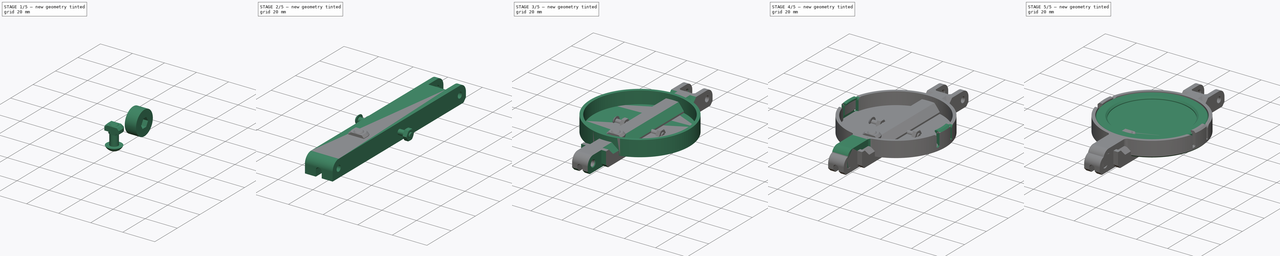
[diagram: build sequence overview — one tinted view per stage of 5, left to right]
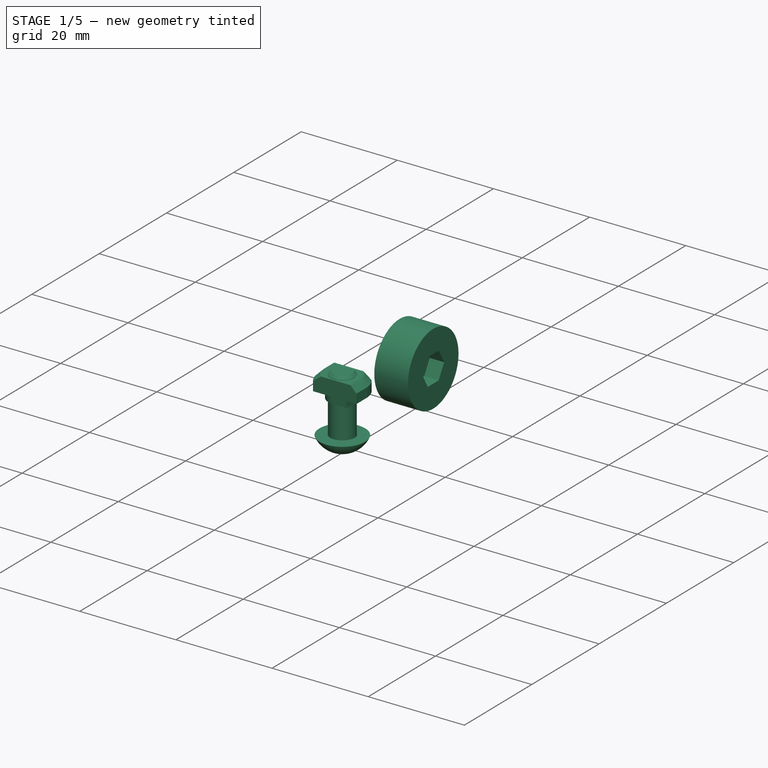
[diagram: stage 1 of 5 — iso view after this stage's code; geometry added in this stage tinted green]
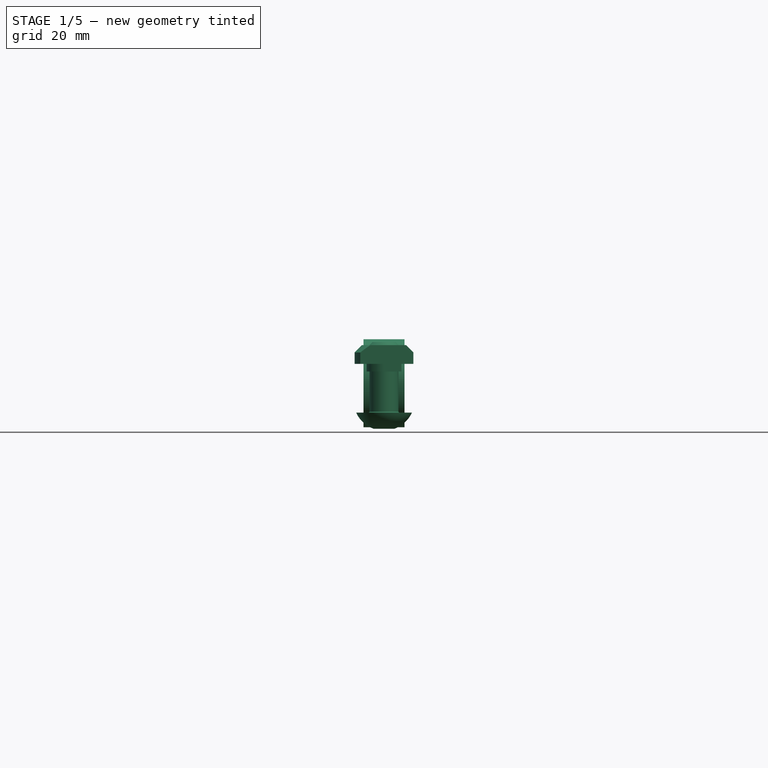
[diagram: stage 1 of 5 — front view after this stage's code; geometry added in this stage tinted green]
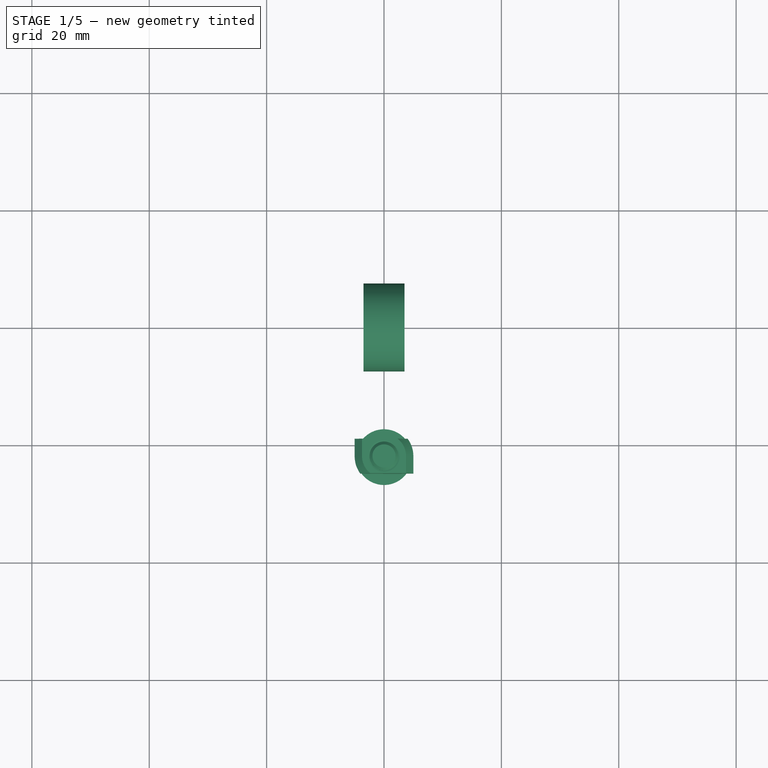
[diagram: stage 1 of 5 — top view after this stage's code; geometry added in this stage tinted green]
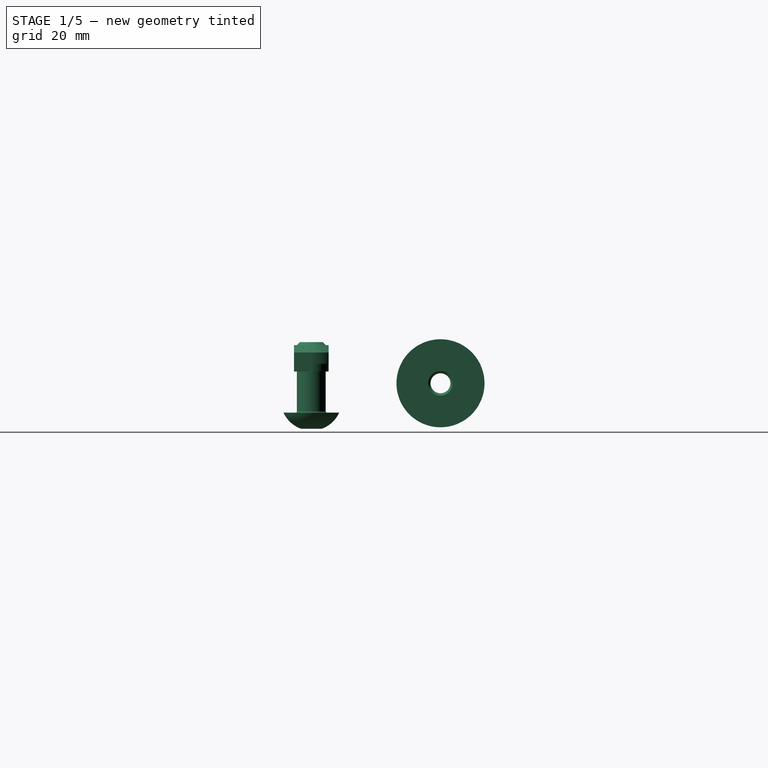
[diagram: stage 1 of 5 — right view after this stage's code; geometry added in this stage tinted green]
FCSTD DOCUMENT  (FreeCAD 1.2R20251223 (Git shallow))
Label: modular-task-light-parts
License: All rights reserved
objects: Sketcher::SketchObject×27, PartDesign::Chamfer×22, PartDesign::Pocket×15, PartDesign::Pad×11, App::Point×10, PartDesign::Body×7, PartDesign::Fillet×7, Part::FeaturePython×5, App::Part×3, PartDesign::Mirrored×3, App::DocumentObjectGroup×2, PartDesign::Revolution×1, PartDesign::AdditivePipe×1, PartDesign::LinearPattern×1, PartDesign::Draft×1, PartDesign::PolarPattern×1, App::Link×1, App::VarSet×1
note: 250 computed .brp shape members not serialized (recipe doc carries the construction recipe); baked Part::Feature solids carry a one-line shape summary decoded from their .brp

FEATURE [PartDesign::Body] Body004  label="Arm"
  AllowCompound = true
  Group = -> [Sketch017,Pad007,Sketch018,Pocket008,Chamfer006,Sketch019,Pocket009,Sketch020,Pad008,Fillet007,LinearPattern,Chamfer007,Sketch021,Pocket010,Draft,Mirrored002,Chamfer008,Chamfer009,Chamfer010,Sketch022,Pocket011,Mirrored003,Chamfer011,Chamfer012]
  Origin = -> Origin010
  Placement = pos=(-7.1e-15,-96.8,3) rot=(0,0,1;0rad)
  Tip = -> Chamfer012
FEATURE [App::Point] Origin013  label="Origine012"
  Role = Origin
FEATURE [Sketcher::SketchObject] Sketch023
  ArcFitTolerance = 1e-06
  AttachmentSupport = -> [Origin012]
  ExternalTypes = [0]
  FullyConstrained = true
  MakeInternals = false
  MapMode = 5
  Placement = pos=(0,0,0) rot=(0.57735,0.57735,0.57735;2.0944rad)
  sketch-geometry (12):
    g0: Circle CenterX=0 CenterY=0 CenterZ=0 NormalX=0 NormalY=0 NormalZ=1 AngleXU=0 Radius=1.7
    g1: ArcOfCircle CenterX=0 CenterY=0 CenterZ=0 NormalX=0 NormalY=0 NormalZ=1 AngleXU=0 Radius=5 StartAngle=0 EndAngle=1.5708
    g2: LineSegment StartX=5 StartY=0 StartZ=0 EndX=5 EndY=-5 EndZ=0
    g3: LineSegment [constr] StartX=5 StartY=-5 StartZ=0 EndX=-32 EndY=-5 EndZ=0
    g4: LineSegment [constr] StartX=-32 StartY=-5 StartZ=0 EndX=-32 EndY=5 EndZ=0
    g5: LineSegment [constr] StartX=-32 StartY=5 StartZ=0 EndX=0 EndY=5 EndZ=0
    g6: LineSegment [constr] StartX=-12 StartY=5 StartZ=0 EndX=-12 EndY=-5 EndZ=0
    g7: LineSegment StartX=5 StartY=-5 StartZ=0 EndX=-32 EndY=-5 EndZ=0
    g8: LineSegment StartX=-32 StartY=-5 StartZ=0 EndX=-32 EndY=2 EndZ=0
    g9: LineSegment StartX=-32 StartY=2 StartZ=0 EndX=-12 EndY=2 EndZ=0
    g10: LineSegment StartX=-12 StartY=2 StartZ=0 EndX=-12 EndY=5 EndZ=0
    g11: LineSegment StartX=-12 StartY=5 StartZ=0 EndX=0 EndY=5 EndZ=0
  constraints (30):
    c: Coincident(g0,g-1)
    c: Diameter(g0) = 3.4
    c: Coincident(g1,g0)
    c: PointOnObject(g1,g-1)
    c: PointOnObject(g1,g-2)
    c: Tangent(g1,g2) = 1.5708
    c: Coincident(g2,g3)
    c: Horizontal(g3)
    c: Coincident(g3,g4)
    c: Coincident(g4,g5)
    c: Coincident(g5,g1)
    c: Horizontal(g5)
    c: Symmetric(g3,g4,g-1)
    c: Distance(g4,g4) = 10
    c: Vertical(g6)
    c: Distance(g0,g6) = 12
    c: PointOnObject(g6,g3)
    c: Distance(g6,g4) = 20
    c: Coincident(g7,g2)
    c: Coincident(g7,g3)
    c: Coincident(g8,g3)
    c: PointOnObject(g8,g4)
    c: Coincident(g9,g8)
    c: PointOnObject(g9,g6)
    c: Horizontal(g9)
    c: Coincident(g10,g9)
    c: Coincident(g10,g6)
    c: Coincident(g11,g6)
    c: Tangent(g11,g1) = 1.5708
    c: DistanceY(g8,g8) = 7
FEATURE [PartDesign::Pad] Pad009
  Direction = (1,0,0)
  Length = 16
  Length2 = 10
  Profile = -> Sketch023
  ReferenceAxis = -> Sketch023 [N_Axis]
  Refine = true
  SideType = 2
  Suppressed = false
  Type = 0
  Type2 = 0
FEATURE [Sketcher::SketchObject] Sketch024
  ArcFitTolerance = 1e-06
  AttachmentSupport = -> [Origin012]
  ExternalTypes = [0]
  FullyConstrained = true
  MakeInternals = false
  MapMode = 5
  Placement = pos=(0,0,0) rot=(0.57735,0.57735,0.57735;2.0944rad)
  sketch-geometry (5):
    g0: LineSegment StartX=-7.5 StartY=-5 StartZ=0 EndX=7.5 EndY=-5 EndZ=0
    g1: LineSegment StartX=7.5 StartY=-5 StartZ=0 EndX=7.5 EndY=5 EndZ=0
    g2: LineSegment StartX=7.5 StartY=5 StartZ=0 EndX=-7.5 EndY=5 EndZ=0
    g3: LineSegment StartX=-7.5 StartY=5 StartZ=0 EndX=-7.5 EndY=-5 EndZ=0
    g4: GeomPoint [constr] X=0 Y=0 Z=0
  constraints (12):
    c: Coincident(g0,g1)
    c: Coincident(g1,g2)
    c: Coincident(g2,g3)
    c: Coincident(g3,g0)
    c: Horizontal(g0)
    c: Horizontal(g2)
    c: Vertical(g1)
    c: Vertical(g3)
    c: Symmetric(g2,g0,g4)
    c: Coincident(g4,g-1)
    c: DistanceX(g2,g2) = 15
    c: DistanceY(g1,g1) = 10
FEATURE [PartDesign::Pocket] Pocket012
  BaseFeature = -> Pad009
  Direction = (-1,0,0)
  Length = 10
  Length2 = 5
  Profile = -> Sketch024
  ReferenceAxis = -> Sketch024 [N_Axis]
  Refine = true
  SideType = 2
  Suppressed = false
  Type = 0
  Type2 = 0
FEATURE [PartDesign::Chamfer] Chamfer013
  Angle = 45
  Base = -> Pocket012 [Edge22,Edge30]
  BaseFeature = -> Pocket012
  ChamferType = 0
  FlipDirection = false
  Refine = true
  Size = 2
  Size2 = 1
  SupportTransform = false
  Suppressed = false
  UseAllEdges = false
FEATURE [Sketcher::SketchObject] Sketch025
  ArcFitTolerance = 1e-06
  AttachmentSupport = -> [Chamfer013]
  ExternalTypes = [0]
  FullyConstrained = true
  MakeInternals = false
  MapMode = 5
  Placement = pos=(0,0,2) rot=(0,0,1;0rad)
  sketch-geometry (1):
    g0: Circle CenterX=0 CenterY=-22 CenterZ=0 NormalX=0 NormalY=0 NormalZ=1 AngleXU=0 Radius=2.7
  constraints (3):
    c: PointOnObject(g0,g-2)
    c: Diameter(g0) = 5.4
    c: Distance(g0,g-3) = 10
FEATURE [PartDesign::Pocket] Pocket013
  BaseFeature = -> Chamfer013
  Direction = (0,0,-1)
  Length = 5
  Length2 = 5
  Profile = -> Sketch025
  ReferenceAxis = -> Sketch025 [N_Axis]
  Refine = true
  SideType = 0
  Suppressed = false
  Type = 1
  Type2 = 0
FEATURE [PartDesign::Chamfer] Chamfer014
  Angle = 45
  Base = -> Pocket013 [Edge3,Edge21]
  BaseFeature = -> Pocket013
  ChamferType = 0
  FlipDirection = false
  Refine = true
  Size = 1
  Size2 = 1
  SupportTransform = false
  Suppressed = false
  UseAllEdges = false
FEATURE [PartDesign::Chamfer] Chamfer015
  Angle = 45
  Base = -> Chamfer014 [Edge45,Edge43]
  BaseFeature = -> Chamfer014
  ChamferType = 0
  FlipDirection = false
  Refine = true
  Size = 1
  Size2 = 1
  SupportTransform = false
  Suppressed = false
  UseAllEdges = false
FEATURE [PartDesign::Chamfer] Chamfer016
  Angle = 45
  Base = -> Chamfer015 [Edge29,Edge50]
  BaseFeature = -> Chamfer015
  ChamferType = 0
  FlipDirection = false
  Refine = true
  Size = 2
  Size2 = 1
  SupportTransform = false
  Suppressed = false
  UseAllEdges = false
FEATURE [PartDesign::Chamfer] Chamfer017
  Angle = 45
  Base = -> Chamfer016 [Edge33,Edge49]
  BaseFeature = -> Chamfer016
  ChamferType = 0
  FlipDirection = false
  Refine = true
  Size = 1
  Size2 = 1
  SupportTransform = false
  Suppressed = false
  UseAllEdges = false
FEATURE [PartDesign::Chamfer] Chamfer018
  Angle = 45
  Base = -> Chamfer017 [Edge69,Edge63,Edge34,Edge27]
  BaseFeature = -> Chamfer017
  ChamferType = 0
  FlipDirection = false
  Refine = true
  Size = 0.4
  Size2 = 1
  SupportTransform = false
  Suppressed = false
  UseAllEdges = false
FEATURE [PartDesign::Body] Body005  label="2020-Support"
  AllowCompound = true
  Group = -> [Sketch023,Pad009,Sketch024,Pocket012,Chamfer013,Sketch025,Pocket013,Chamfer014,Chamfer015,Chamfer016,Chamfer017,Chamfer018]
  Origin = -> Origin012
  Tip = -> Chamfer018
FEATURE [App::Point] Origin015  label="Origine014"
  Role = Origin
FEATURE [Sketcher::SketchObject] Sketch026
  ArcFitTolerance = 1e-06
  AttachmentSupport = -> [Origin014]
  ExternalTypes = [0]
  FullyConstrained = true
  MakeInternals = false
  MapMode = 5
  Placement = pos=(0,0,0) rot=(0.57735,0.57735,0.57735;2.0944rad)
  sketch-geometry (2):
    g0: Circle CenterX=0 CenterY=0 CenterZ=0 NormalX=0 NormalY=0 NormalZ=1 AngleXU=0 Radius=7.5
    g1: Circle CenterX=0 CenterY=0 CenterZ=0 NormalX=0 NormalY=0 NormalZ=1 AngleXU=0 Radius=1.7
  constraints (4):
    c: Coincident(g0,g-1)
    c: Diameter(g0) = 15
    c: Coincident(g1,g0)
    c: Diameter(g1) = 3.4
FEATURE [PartDesign::Pad] Pad010
  Direction = (1,0,0)
  Length = 7
  Length2 = 10
  Profile = -> Sketch026
  ReferenceAxis = -> Sketch026 [N_Axis]
  Refine = true
  SideType = 2
  Suppressed = false
  Type = 0
  Type2 = 0
FEATURE [Sketcher::SketchObject] Sketch027
  ArcFitTolerance = 1e-06
  AttachmentSupport = -> [Pad010]
  ExternalTypes = [0]
  FullyConstrained = true
  MakeInternals = false
  MapMode = 5
  Placement = pos=(3.5,0,0) rot=(0.57735,0.57735,0.57735;2.0944rad)
  sketch-geometry (7):
    g0: LineSegment StartX=3.23316 StartY=0 StartZ=0 EndX=1.61658 EndY=2.8 EndZ=0
    g1: LineSegment StartX=1.61658 StartY=2.8 StartZ=0 EndX=-1.61658 EndY=2.8 EndZ=0
    g2: LineSegment StartX=-1.61658 StartY=2.8 StartZ=0 EndX=-3.23316 EndY=0 EndZ=0
    g3: LineSegment StartX=-3.23316 StartY=0 StartZ=0 EndX=-1.61658 EndY=-2.8 EndZ=0
    g4: LineSegment StartX=-1.61658 StartY=-2.8 StartZ=0 EndX=1.61658 EndY=-2.8 EndZ=0
    g5: LineSegment StartX=1.61658 StartY=-2.8 StartZ=0 EndX=3.23316 EndY=0 EndZ=0
    g6: Circle [constr] CenterX=0 CenterY=0 CenterZ=0 NormalX=0 NormalY=0 NormalZ=1 AngleXU=0 Radius=3.23316
  constraints (16):
    c: Coincident(g0,g1)
    c: Coincident(g1,g2)
    c: Coincident(g2,g3)
    c: Coincident(g3,g4)
    c: Coincident(g4,g5)
    c: Coincident(g5,g0)
    c: Equal(g0, g1-g5) x5
    c: PointOnObject(g0,g6)
    c: PointOnObject(g1,g6)
    c: PointOnObject(g2,g6)
    c: PointOnObject(g3,g6)
    c: PointOnObject(g4,g6)
    c: PointOnObject(g5,g6)
    c: Coincident(g6,g-1)
    c: PointOnObject(g5,g-1)
    c: Distance(g4,g1) = 5.6
FEATURE [PartDesign::Pocket] Pocket014
  BaseFeature = -> Pad010
  Direction = (-1,0,0)
  Length = 3
  Length2 = 5
  Profile = -> Sketch027
  ReferenceAxis = -> Sketch027 [N_Axis]
  Refine = true
  SideType = 0
  Suppressed = false
  Type = 0
  Type2 = 0
FEATURE [PartDesign::Chamfer] Chamfer019
  Angle = 45
  Base = -> Pocket014 [Edge4,Edge12]
  BaseFeature = -> Pocket014
  ChamferType = 0
  FlipDirection = false
  Refine = true
  Size = 0.4
  Size2 = 1
  SupportTransform = false
  Suppressed = false
  UseAllEdges = false
FEATURE [App::DocumentObjectGroup] Group  label="Fasteners-Knurling-Nut"
  Group = -> [Screw,Nut,Nut001]
FEATURE [App::Part] Part001  label="Knurling-Nut-Asm"
  Group = -> [Body006,Link,Group,Screw,Nut,Nut001]
  Origin = -> Origin016
  Placement = pos=(-7.1e-15,-46.8,3) rot=(0,0,1;0rad)
FEATURE [App::Point] Origin019  label="Origine018"
  Role = Origin
FEATURE [Part::FeaturePython] Screw001  label="M5x12-Vis"  # WARN: FeaturePython — macro-defined, semantics opaque (R4)
  BaseObject = -> Body005 [Chamfer018.Edge42]
  Diameter = 3
  Invert = true
  LeftHanded = false
  Length = 2
  LengthCustom = 12
  MatchOuter = true
  OffsetAngle = 0
  Placement = pos=(0,-22,-5) rot=(-1,0,0;3.14159rad)
  Thread = false
  Type = 85
FEATURE [Part::FeaturePython] TSlot  label="M5 x 20 series-TSlot"  # WARN: FeaturePython — macro-defined, semantics opaque (R4)
  BaseObject = -> Body005 [Chamfer018.Edge28]
  Diameter = 3
  Invert = true
  LeftHanded = false
  MatchOuter = true
  OffsetAngle = 0
  Placement = pos=(0,-22,2) rot=(-1,0,0;3.14159rad)
  SlotWidth = 0
  Thread = false
  Type = 1
FEATURE [App::DocumentObjectGroup] Group001  label="Fasteners-Support"
  Group = -> [Screw001,TSlot]
FEATURE [App::Part] Part002  label="2020-Support-Asm"
  Group = -> [Body005,Group001,Screw001,TSlot]
  Origin = -> Origin018
  Placement = pos=(-7.1e-15,-146.8,3) rot=(0,0,1;0rad)
FEATURE [App::VarSet] VarSet
  arm_length = 100
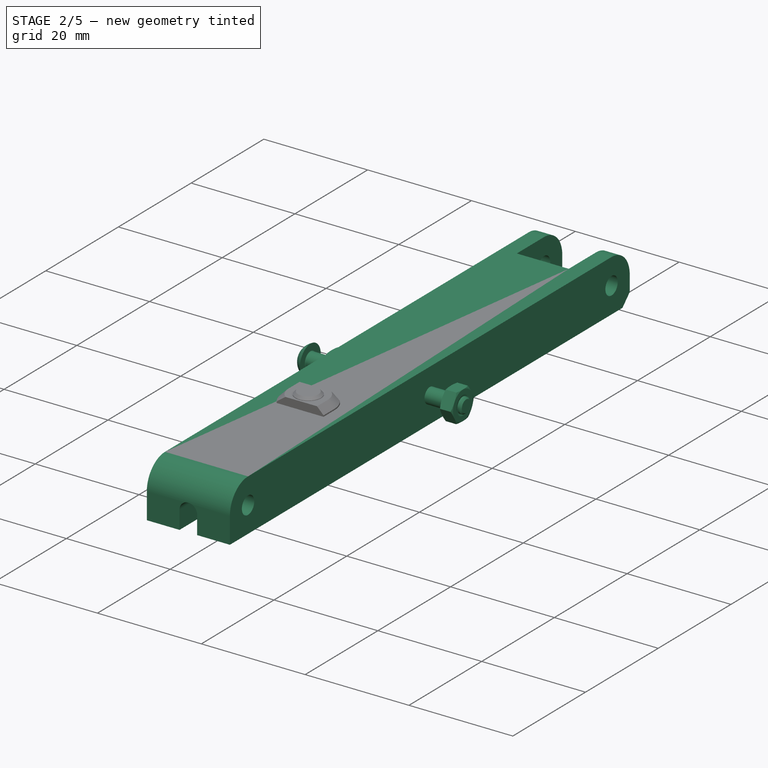
[diagram: stage 2 of 5 — iso view after this stage's code; geometry added in this stage tinted green]
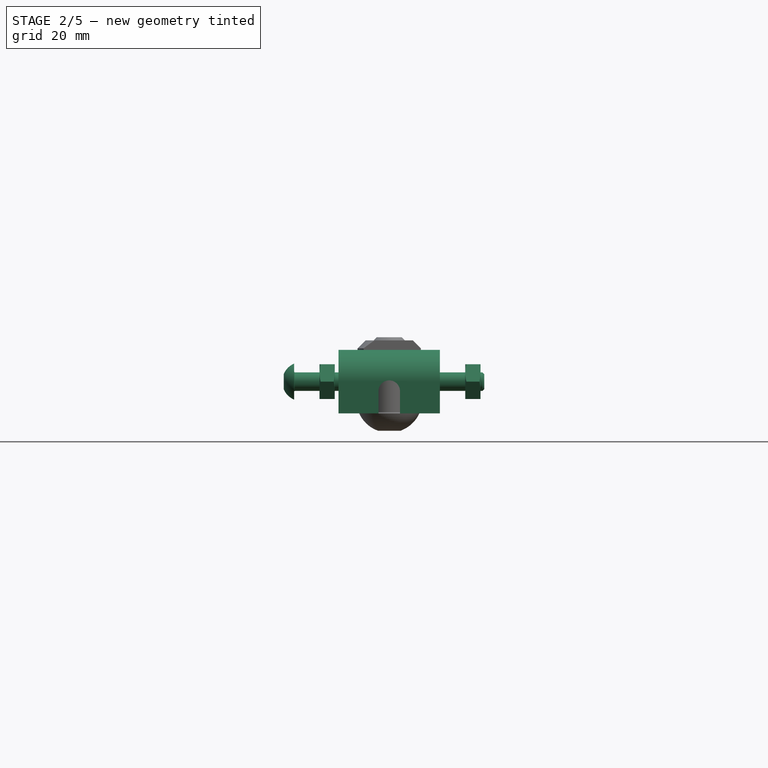
[diagram: stage 2 of 5 — front view after this stage's code; geometry added in this stage tinted green]
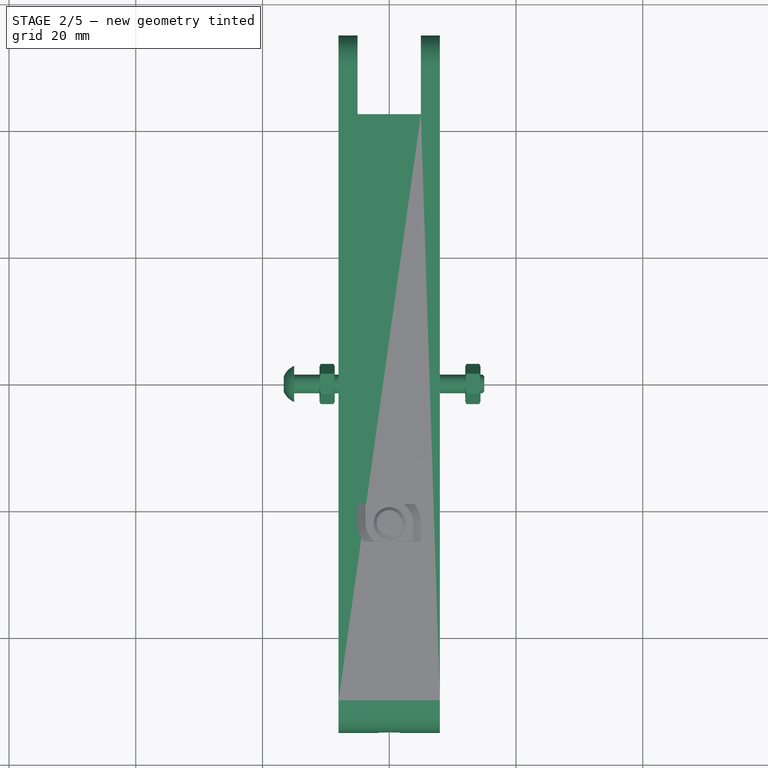
[diagram: stage 2 of 5 — top view after this stage's code; geometry added in this stage tinted green]
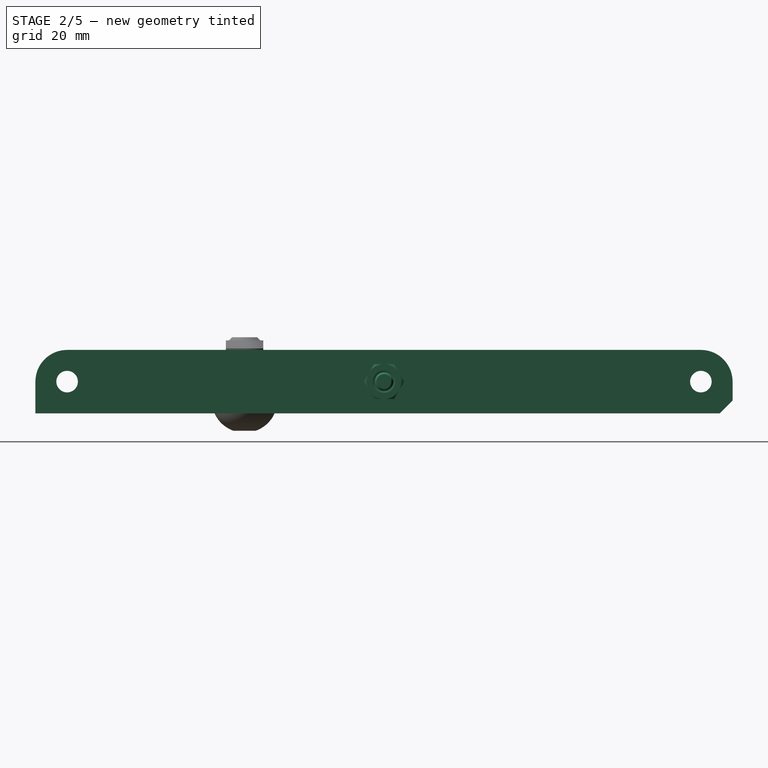
[diagram: stage 2 of 5 — right view after this stage's code; geometry added in this stage tinted green]
FEATURE [PartDesign::Body] Body003  label="Lamp-clip"
  AllowCompound = true
  Group = -> [Sketch005,Pad002,Sketch008,Pad003,Sketch009,Pocket003,Pad004,Sketch010,AdditivePipe,Sketch011,Pocket004,Mirrored,Fillet,Fillet001,Chamfer002,Fillet003,Sketch012,Pad005,Fillet004,Chamfer003,Fillet005,Sketch013,Pocket005,Sketch014,Pocket006,Sketch015,Pad006,Sketch016,Pocket007,Chamfer004,Fillet006,Chamfer005]
  Origin = -> Origin008
  Tip = -> Chamfer005
FEATURE [App::Point] Origin011  label="Origine010"
  Role = Origin
FEATURE [Sketcher::SketchObject] Sketch017
  ArcFitTolerance = 1e-06
  AttachmentSupport = -> [Origin010]
  ExternalTypes = [0]
  FullyConstrained = true
  MakeInternals = false
  MapMode = 5
  Placement = pos=(0,0,0) rot=(0.57735,0.57735,0.57735;2.0944rad)
  expr: Constraints[10] = VarSet.arm_length
  sketch-geometry (8):
    g0: LineSegment StartX=-55 StartY=0 StartZ=0 EndX=-55 EndY=-5 EndZ=0
    g1: LineSegment StartX=-55 StartY=-5 StartZ=0 EndX=55 EndY=-5 EndZ=0
    g2: LineSegment StartX=55 StartY=-5 StartZ=0 EndX=55 EndY=0 EndZ=0
    g3: ArcOfCircle CenterX=-50 CenterY=0 CenterZ=0 NormalX=0 NormalY=0 NormalZ=1 AngleXU=0 Radius=5 StartAngle=1.5708 EndAngle=3.14159
    g4: ArcOfCircle CenterX=50 CenterY=0 CenterZ=0 NormalX=0 NormalY=0 NormalZ=1 AngleXU=0 Radius=5 StartAngle=0 EndAngle=1.5708
    g5: LineSegment StartX=50 StartY=5 StartZ=0 EndX=-50 EndY=5 EndZ=0
    g6: Circle CenterX=50 CenterY=0 CenterZ=0 NormalX=0 NormalY=0 NormalZ=1 AngleXU=0 Radius=1.7
    g7: Circle CenterX=-50 CenterY=0 CenterZ=0 NormalX=0 NormalY=0 NormalZ=1 AngleXU=0 Radius=1.7
  constraints (20):
    c: PointOnObject(g0,g-1)
    c: Vertical(g0)
    c: Coincident(g0,g1)
    c: Horizontal(g1)
    c: Coincident(g1,g2)
    c: PointOnObject(g3,g-1)
    c: Coincident(g3,g0)
    c: Horizontal(g5)
    c: Tangent(g3,g1)
    c: Distance(g4,g1) = 10
    c: DistanceX(g3,g4) = 100
    c: Coincident(g6,g4)
    c: Coincident(g7,g3)
    c: Tangent(g5,g3) = -1.5708
    c: Equal(g6,g7)
    c: Diameter(g7) = 3.4
    c: Tangent(g4,g2) = -1.5708
    c: Vertical(g2)
    c: Tangent(g5,g4) = -1.5708
    c: Symmetric(g4,g3,g-2)
FEATURE [PartDesign::Pad] Pad007
  Direction = (1,0,0)
  Length = 16
  Length2 = 10
  Profile = -> Sketch017
  ReferenceAxis = -> Sketch017 [N_Axis]
  Refine = true
  SideType = 2
  Suppressed = false
  Type = 0
  Type2 = 0
FEATURE [Sketcher::SketchObject] Sketch018
  ArcFitTolerance = 1e-06
  AttachmentSupport = -> [Origin010]
  ExternalGeometry = -> [Pad007]
  ExternalTypes = [0,0]
  FullyConstrained = true
  MakeInternals = false
  MapMode = 5
  Placement = pos=(0,0,0) rot=(0.57735,0.57735,0.57735;2.0944rad)
  sketch-geometry (5):
    g0: LineSegment StartX=42.5 StartY=-5 StartZ=0 EndX=57.5 EndY=-5 EndZ=0
    g1: LineSegment StartX=57.5 StartY=-5 StartZ=0 EndX=57.5 EndY=5 EndZ=0
    g2: LineSegment StartX=57.5 StartY=5 StartZ=0 EndX=42.5 EndY=5 EndZ=0
    g3: LineSegment StartX=42.5 StartY=5 StartZ=0 EndX=42.5 EndY=-5 EndZ=0
    g4: GeomPoint [constr] X=50 Y=0 Z=0
  constraints (12):
    c: Coincident(g0,g1)
    c: Coincident(g1,g2)
    c: Coincident(g2,g3)
    c: Coincident(g3,g0)
    c: Horizontal(g0)
    c: Horizontal(g2)
    c: Vertical(g1)
    c: Vertical(g3)
    c: Symmetric(g2,g0,g4)
    c: Coincident(g4,g-3)
    c: PointOnObject(g2,g-4)
    c: DistanceX(g2,g2) = 15
FEATURE [PartDesign::Pocket] Pocket008
  BaseFeature = -> Pad007
  Direction = (-1,0,0)
  Length = 10
  Length2 = 5
  Profile = -> Sketch018
  ReferenceAxis = -> Sketch018 [N_Axis]
  Refine = true
  SideType = 2
  Suppressed = false
  Type = 0
  Type2 = 0
FEATURE [PartDesign::Chamfer] Chamfer006
  Angle = 45
  Base = -> Pocket008 [Edge9,Edge13]
  BaseFeature = -> Pocket008
  ChamferType = 0
  FlipDirection = false
  Refine = true
  Size = 2
  Size2 = 1
  SupportTransform = false
  Suppressed = false
  UseAllEdges = false
FEATURE [Sketcher::SketchObject] Sketch019
  ArcFitTolerance = 1e-06
  AttachmentSupport = -> [Origin010]
  ExternalTypes = [0]
  FullyConstrained = true
  MakeInternals = false
  MapMode = 5
  Placement = pos=(0,0,0) rot=(1,0,0;1.5708rad)
  sketch-geometry (4):
    g0: ArcOfCircle CenterX=0 CenterY=-5 CenterZ=0 NormalX=0 NormalY=0 NormalZ=1 AngleXU=0 Radius=1.7 StartAngle=3.14159 EndAngle=6.28319
    g1: ArcOfCircle CenterX=0 CenterY=-1.5 CenterZ=0 NormalX=0 NormalY=0 NormalZ=1 AngleXU=0 Radius=1.7 StartAngle=-6.87637e-11 EndAngle=3.14159
    g2: LineSegment StartX=-1.7 StartY=-5 StartZ=0 EndX=-1.7 EndY=-1.5 EndZ=0
    g3: LineSegment StartX=1.7 StartY=-5 StartZ=0 EndX=1.7 EndY=-1.5 EndZ=0
  constraints (10):
    c: Tangent(g0,g2) = 1.5708
    c: Tangent(g0,g3) = -1.5708
    c: Tangent(g1,g2) = 1.5708
    c: Tangent(g1,g3) = -1.5708
    c: Equal(g0,g1)
    c: PointOnObject(g1,g-2)
    c: PointOnObject(g0,g-2)
    c: PointOnObject(g0,g-3)
    c: Distance(g1,g1) = 3.4
    c: DistanceY(g3,g3) = 3.5
FEATURE [PartDesign::Pocket] Pocket009
  BaseFeature = -> Chamfer006
  Direction = (0,1,-2e-16)
  Length = 5
  Length2 = 5
  Profile = -> Sketch019
  ReferenceAxis = -> Sketch019 [N_Axis]
  Refine = true
  SideType = 2
  Suppressed = false
  Type = 1
  Type2 = 0
FEATURE [Sketcher::SketchObject] Sketch020
  ArcFitTolerance = 1e-06
  AttachmentSupport = -> [Origin010]
  ExternalGeometry = -> [Pocket009]
  ExternalTypes = [0,0]
  FullyConstrained = true
  MakeInternals = false
  MapMode = 5
  Placement = pos=(0,0,0) rot=(1,0,0;1.5708rad)
  sketch-geometry (6):
    g0: LineSegment StartX=-1.7 StartY=-5 StartZ=0 EndX=-1.4 EndY=-5 EndZ=0
    g1: LineSegment StartX=-1.7 StartY=-5 StartZ=0 EndX=-1.7 EndY=-4 EndZ=0
    g2: LineSegment StartX=-1.7 StartY=-4 StartZ=0 EndX=-1.4 EndY=-5 EndZ=0
    g3: LineSegment StartX=1.7 StartY=-5 StartZ=0 EndX=1.4 EndY=-5 EndZ=0
    g4: LineSegment StartX=1.4 StartY=-5 StartZ=0 EndX=1.7 EndY=-4 EndZ=0
    g5: LineSegment StartX=1.7 StartY=-4 StartZ=0 EndX=1.7 EndY=-5 EndZ=0
  constraints (16):
    c: Coincident(g0,g-4)
    c: Horizontal(g0)
    c: Coincident(g0,g1)
    c: PointOnObject(g1,g-4)
    c: Coincident(g1,g2)
    c: Coincident(g2,g0)
    c: Coincident(g-3,g3)
    c: Horizontal(g3)
    c: Coincident(g3,g4)
    c: PointOnObject(g4,g-3)
    c: Coincident(g4,g5)
    c: Coincident(g5,g3)
    c: Equal(g3,g0)
    c: Equal(g1,g5)
    c: DistanceX(g0,g3) = 2.8
    c: Distance(g5,g5) = 1
FEATURE [PartDesign::Pad] Pad008
  BaseFeature = -> Pocket009
  Direction = (0,-1,2e-16)
  Length = 5
  Length2 = 10
  Profile = -> Sketch020
  ReferenceAxis = -> Sketch020 [N_Axis]
  Refine = true
  SideType = 2
  Suppressed = false
  Type = 0
  Type2 = 0
FEATURE [PartDesign::Fillet] Fillet007
  Base = -> Pad008 [Edge64,Edge88]
  BaseFeature = -> Pad008
  Radius = 0.2
  Refine = true
  SupportTransform = false
  Suppressed = false
  UseAllEdges = false
FEATURE [PartDesign::Chamfer] Chamfer020
  Angle = 45
  Base = -> Chamfer019 [Edge2,Edge6]
  BaseFeature = -> Chamfer019
  ChamferType = 0
  FlipDirection = false
  Refine = true
  Size = 1
  Size2 = 1
  SupportTransform = false
  Suppressed = false
  UseAllEdges = false
FEATURE [Sketcher::SketchObject] Sketch028
  ArcFitTolerance = 1e-06
  AttachmentSupport = -> [Origin014]
  ExternalGeometry = -> [Chamfer020]
  ExternalTypes = [0]
  FullyConstrained = true
  MakeInternals = false
  MapMode = 5
  Placement = pos=(0,0,0) rot=(0.57735,0.57735,0.57735;2.0944rad)
  sketch-geometry (4):
    g0: LineSegment StartX=0 StartY=6.5 StartZ=0 EndX=0.866025 EndY=8 EndZ=0
    g1: LineSegment StartX=0.866025 StartY=8 StartZ=0 EndX=-0.866025 EndY=8 EndZ=0
    g2: LineSegment StartX=-0.866025 StartY=8 StartZ=0 EndX=0 EndY=6.5 EndZ=0
    g3: Circle [constr] CenterX=0 CenterY=7.5 CenterZ=0 NormalX=0 NormalY=0 NormalZ=1 AngleXU=0 Radius=1
  constraints (12):
    c: Coincident(g0,g1)
    c: Coincident(g1,g2)
    c: Coincident(g2,g0)
    c: Equal(g0,g1)
    c: Equal(g0,g2)
    c: PointOnObject(g0,g3)
    c: PointOnObject(g1,g3)
    c: PointOnObject(g2,g3)
    c: PointOnObject(g3,g-2)
    c: PointOnObject(g2,g-2)
    c: PointOnObject(g3,g-3)
    c: Distance(g0,g3) = 1
FEATURE [PartDesign::Pocket] Pocket015
  BaseFeature = -> Chamfer020
  Direction = (-1,0,0)
  Length = 7
  Length2 = 5
  Profile = -> Sketch028
  ReferenceAxis = -> Sketch028 [N_Axis]
  Refine = true
  SideType = 2
  Suppressed = false
  Type = 0
  Type2 = 0
FEATURE [PartDesign::PolarPattern] PolarPattern
  Angle = 360
  Axis = -> Sketch028 [N_Axis]
  BaseFeature = -> Pocket015
  Mode = 0
  Occurrences = 20
  Offset = 120
  Originals = -> [Pocket015]
  Refine = true
  SpacingPattern = [0]
  Spacings = [-1,-1,-1,-1,-1,-1,-1,-1,-1,-1,-1,-1,-1,-1,-1,-1,-1,-1,-1]
  Suppressed = false
  TransformMode = 0
FEATURE [PartDesign::Chamfer] Chamfer021
  Angle = 45
  Base = -> PolarPattern [Edge229,Edge230,Edge231,Edge232,Edge233,Edge228]
  BaseFeature = -> PolarPattern
  ChamferType = 0
  FlipDirection = false
  Refine = true
  Size = 0.4
  Size2 = 1
  SupportTransform = false
  Suppressed = false
  UseAllEdges = false
FEATURE [PartDesign::Body] Body006  label="Knurling-Nut"
  AllowCompound = true
  Group = -> [Sketch026,Pad010,Sketch027,Pocket014,Chamfer019,Chamfer020,Sketch028,Pocket015,PolarPattern,Chamfer021]
  Origin = -> Origin014
  Placement = pos=(-11.5,0,0) rot=(0,0,1;0rad)
  Tip = -> Chamfer021
FEATURE [App::Point] Origin017  label="Origine016"
  Role = Origin
FEATURE [App::Link] Link  label="Knurling-Nut001"
  LinkPlacement = pos=(11.5,0,0) rot=(0,0,1;0rad)
  LinkedObject = -> Body006
  Placement = pos=(11.5,0,0) rot=(0,0,1;0rad)
FEATURE [Part::FeaturePython] Screw  label="M3x30-Vis"  # WARN: FeaturePython — macro-defined, semantics opaque (R4)
  BaseObject = -> Body006 [Chamfer021.Edge254]
  Diameter = 1
  Invert = true
  LeftHanded = false
  Length = 8
  LengthCustom = 30
  MatchOuter = false
  OffsetAngle = 0
  Placement = pos=(-15,0,0) rot=(0,-1,0;1.5708rad)
  Thread = false
  Type = 85
FEATURE [Part::FeaturePython] Nut  label="M3-Écrou"  # WARN: FeaturePython — macro-defined, semantics opaque (R4)
  BaseObject = -> Body006 [Chamfer021.Edge231]
  Diameter = 4
  Invert = true
  LeftHanded = false
  MatchOuter = false
  OffsetAngle = 30
  Placement = pos=(-11,0,0) rot=(0.250563,0.935113,0.250563;1.63783rad)
  Thread = false
  Type = 31
FEATURE [Part::FeaturePython] Nut001  label="M3-Écrou001"  # WARN: FeaturePython — macro-defined, semantics opaque (R4)
  BaseObject = -> Link [Chamfer021.Edge231]
  Diameter = 4
  Invert = true
  LeftHanded = false
  MatchOuter = false
  OffsetAngle = 30
  Placement = pos=(12,0,0) rot=(0.250563,0.935113,0.250563;1.63783rad)
  Thread = false
  Type = 31
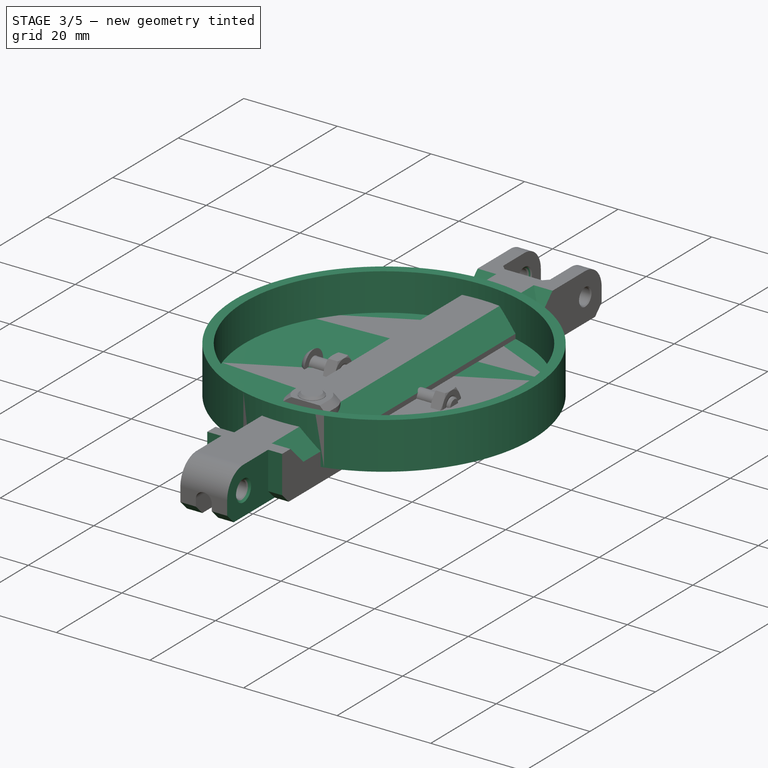
[diagram: stage 3 of 5 — iso view after this stage's code; geometry added in this stage tinted green]
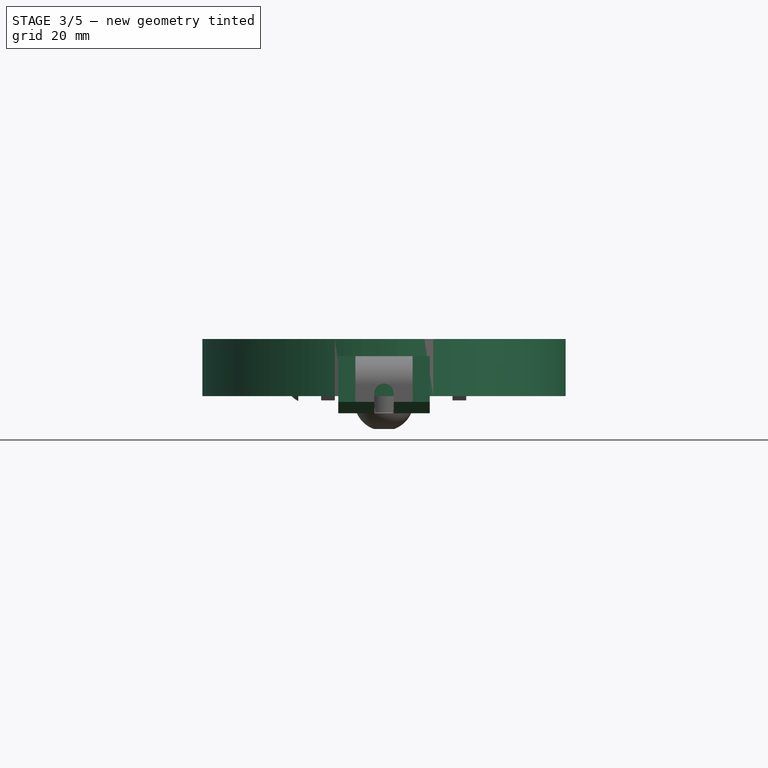
[diagram: stage 3 of 5 — front view after this stage's code; geometry added in this stage tinted green]
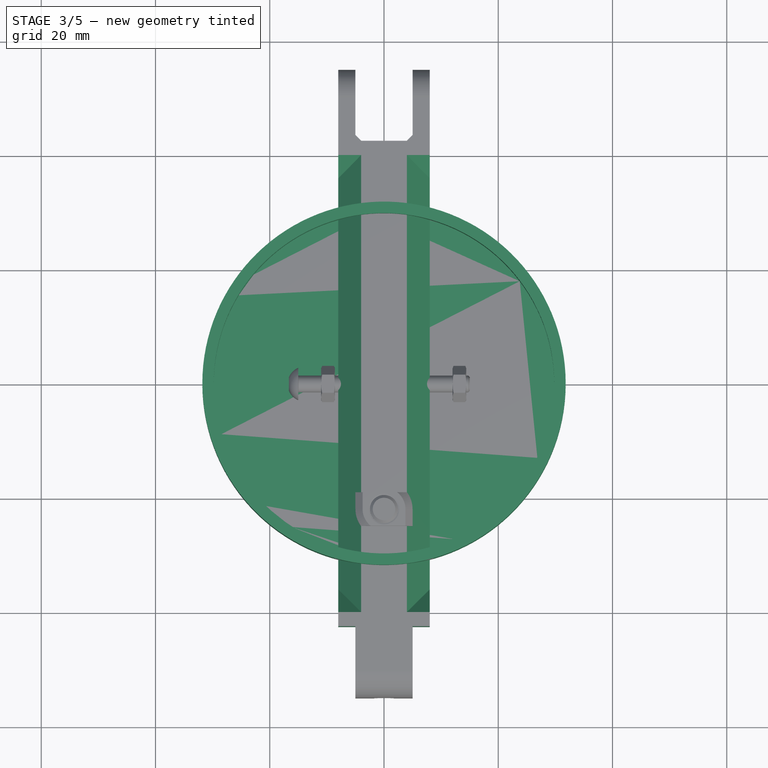
[diagram: stage 3 of 5 — top view after this stage's code; geometry added in this stage tinted green]
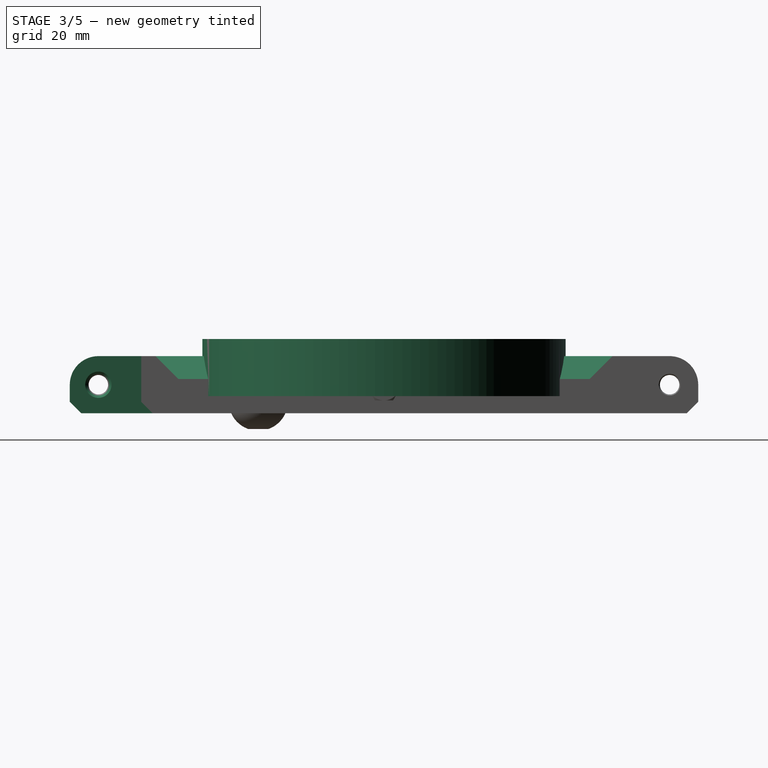
[diagram: stage 3 of 5 — right view after this stage's code; geometry added in this stage tinted green]
FEATURE [PartDesign::Body] Body002  label="lamp-led-cable"
  AllowCompound = true
  Group = -> [Sketch004,Pad001]
  Origin = -> Origin004
  Placement = pos=(0,-20,1.5) rot=(0,0,1;0rad)
  Tip = -> Pad001
FEATURE [App::Part] Part  label="lamp-led"
  Group = -> [Body,Body001,Body002]
  Origin = -> Origin006
FEATURE [App::Point] Origin007  label="Origine006"
  Role = Origin
FEATURE [App::Point] Origin009  label="Origine008"
  Role = Origin
FEATURE [Sketcher::SketchObject] Sketch005
  ArcFitTolerance = 1e-06
  AttachmentSupport = -> [Origin008]
  ExternalTypes = [0]
  FullyConstrained = true
  MakeInternals = false
  MapMode = 5
  sketch-geometry (2):
    g0: Circle CenterX=0 CenterY=0 CenterZ=0 NormalX=0 NormalY=0 NormalZ=1 AngleXU=0 Radius=29.8
    g1: Circle CenterX=0 CenterY=0 CenterZ=0 NormalX=0 NormalY=0 NormalZ=1 AngleXU=0 Radius=31.8
  constraints (4):
    c: Coincident(g0,g-1)
    c: Diameter(g0) = 59.6
    c: Coincident(g1,g0)
    c: Distance(g0,g1) = 2
FEATURE [PartDesign::Pad] Pad002
  Direction = (0,0,1)
  Length = 8
  Length2 = 10
  Profile = -> Sketch005
  ReferenceAxis = -> Sketch005 [N_Axis]
  Refine = true
  SideType = 0
  Suppressed = false
  Type = 0
  Type2 = 0
FEATURE [Sketcher::SketchObject] Sketch008
  ArcFitTolerance = 1e-06
  AttachmentSupport = -> [Origin008]
  ExternalGeometry = -> [Pad002]
  ExternalTypes = [0]
  FullyConstrained = true
  MakeInternals = false
  MapMode = 5
  sketch-geometry (1):
    g0: Circle CenterX=0 CenterY=0 CenterZ=0 NormalX=0 NormalY=0 NormalZ=1 AngleXU=0 Radius=31.8
  constraints (2):
    c: Coincident(g0,g-1)
    c: Equal(g-3,g0)
FEATURE [PartDesign::Pad] Pad003
  BaseFeature = -> Pad002
  Direction = (0,0,1)
  Length = 2
  Length2 = 10
  Profile = -> Sketch008
  ReferenceAxis = -> Sketch008 [N_Axis]
  Refine = true
  Reversed = true
  SideType = 0
  Suppressed = false
  Type = 0
  Type2 = 0
FEATURE [PartDesign::LinearPattern] LinearPattern
  BaseFeature = -> Fillet007
  Direction = -> Sketch020 [N_Axis]
  Direction2 = -> Sketch020 [N_Axis]
  Length = 30
  Length2 = 30
  Mode = 0
  Mode2 = 0
  Occurrences = 2
  Occurrences2 = 2
  Offset = 30
  Offset2 = 30
  Originals = -> [Pad008,Fillet007]
  Refine = true
  Reversed2 = true
  SpacingPattern = [0]
  SpacingPattern2 = [0]
  Spacings = [-1]
  Spacings2 = [-1]
  Suppressed = false
  TransformMode = 0
  expr: Length = VarSet.arm_length / 2 - 20 mm
  expr: Length2 = VarSet.arm_length / 2 - 20 mm
FEATURE [PartDesign::Chamfer] Chamfer007
  Angle = 45
  Base = -> LinearPattern [Edge20]
  BaseFeature = -> LinearPattern
  ChamferType = 0
  FlipDirection = false
  Refine = true
  Size = 1
  Size2 = 1
  SupportTransform = false
  Suppressed = false
  UseAllEdges = false
FEATURE [Sketcher::SketchObject] Sketch021
  ArcFitTolerance = 1e-06
  AttachmentSupport = -> [Origin010]
  ExternalGeometry = -> [Chamfer007]
  ExternalTypes = [0,0]
  FullyConstrained = true
  MakeInternals = false
  MapMode = 5
  Placement = pos=(0,0,0) rot=(1,0,0;1.5708rad)
  sketch-geometry (3):
    g0: LineSegment StartX=-8 StartY=5 StartZ=0 EndX=-4 EndY=5 EndZ=0
    g1: LineSegment StartX=-4 StartY=5 StartZ=0 EndX=-8 EndY=1 EndZ=0
    g2: LineSegment StartX=-8 StartY=1 StartZ=0 EndX=-8 EndY=5 EndZ=0
  constraints (8):
    c: Coincident(g-4,g0)
    c: PointOnObject(g0,g-3)
    c: Coincident(g0,g1)
    c: PointOnObject(g1,g-4)
    c: Coincident(g1,g2)
    c: Coincident(g2,g0)
    c: Angle(g1,g2) = 0.785398
    c: DistanceX(g0,g0) = 4
FEATURE [PartDesign::Pocket] Pocket010
  BaseFeature = -> Chamfer007
  Direction = (0,1,-2e-16)
  Length = 80
  Length2 = 5
  Profile = -> Sketch021
  ReferenceAxis = -> Sketch021 [N_Axis]
  Refine = true
  SideType = 2
  Suppressed = false
  Type = 0
  Type2 = 0
  expr: Length = VarSet.arm_length - 20 mm
FEATURE [PartDesign::Draft] Draft
  Angle = 45
  Base = -> Pocket010 [Face38,Face36]
  BaseFeature = -> Pocket010
  Refine = true
  SupportTransform = false
  Suppressed = false
FEATURE [PartDesign::Mirrored] Mirrored002
  BaseFeature = -> Draft
  MirrorPlane = -> Sketch021 [V_Axis]
  Originals = -> [Pocket010,Draft]
  Refine = true
  Suppressed = false
  TransformMode = 0
FEATURE [PartDesign::Chamfer] Chamfer008
  Angle = 45
  Base = -> Mirrored002 [Edge78,Edge128]
  BaseFeature = -> Mirrored002
  ChamferType = 0
  FlipDirection = false
  Refine = true
  Size = 0.6
  Size2 = 1
  SupportTransform = false
  Suppressed = false
  UseAllEdges = false
FEATURE [PartDesign::Chamfer] Chamfer009
  Angle = 45
  Base = -> Chamfer008 [Edge7,Edge50]
  BaseFeature = -> Chamfer008
  ChamferType = 0
  FlipDirection = false
  Refine = true
  Size = 1
  Size2 = 1
  SupportTransform = false
  Suppressed = false
  UseAllEdges = false
FEATURE [PartDesign::Chamfer] Chamfer010
  Angle = 45
  Base = -> Chamfer009 [Edge113,Edge79,Edge80,Edge114]
  BaseFeature = -> Chamfer009
  ChamferType = 0
  FlipDirection = false
  Refine = true
  Size = 0.2
  Size2 = 1
  SupportTransform = false
  Suppressed = false
  UseAllEdges = false
FEATURE [Sketcher::SketchObject] Sketch022
  ArcFitTolerance = 1e-06
  AttachmentSupport = -> [Chamfer010]
  ExternalGeometry = -> [Chamfer010]
  ExternalTypes = [0]
  FullyConstrained = true
  MakeInternals = false
  MapMode = 5
  Placement = pos=(8,0,0) rot=(0.57735,0.57735,0.57735;2.0944rad)
  sketch-geometry (5):
    g0: LineSegment StartX=-57.5 StartY=5 StartZ=0 EndX=-57.5 EndY=-5 EndZ=0
    g1: LineSegment StartX=-57.5 StartY=-5 StartZ=0 EndX=-42.5 EndY=-5 EndZ=0
    g2: LineSegment StartX=-42.5 StartY=-5 StartZ=0 EndX=-42.5 EndY=5 EndZ=0
    g3: LineSegment StartX=-42.5 StartY=5 StartZ=0 EndX=-57.5 EndY=5 EndZ=0
    g4: GeomPoint [constr] X=-50 Y=0 Z=0
  constraints (12):
    c: Coincident(g0,g1)
    c: Coincident(g1,g2)
    c: Coincident(g2,g3)
    c: Coincident(g3,g0)
    c: Vertical(g0)
    c: Vertical(g2)
    c: Horizontal(g1)
    c: Horizontal(g3)
    c: Symmetric(g2,g0,g4)
    c: Coincident(g4,g-3)
    c: Distance(g0,g0) = 10
    c: DistanceX(g3,g3) = 15
FEATURE [PartDesign::Pocket] Pocket011
  BaseFeature = -> Chamfer010
  Direction = (-1,0,0)
  Length = 3
  Length2 = 5
  Profile = -> Sketch022
  ReferenceAxis = -> Sketch022 [N_Axis]
  Refine = true
  SideType = 0
  Suppressed = false
  Type = 0
  Type2 = 0
FEATURE [PartDesign::Mirrored] Mirrored003
  BaseFeature = -> Pocket011
  MirrorPlane = -> YZ_Plane005
  Originals = -> [Pocket011]
  Refine = true
  Suppressed = false
  TransformMode = 0
FEATURE [PartDesign::Chamfer] Chamfer011
  Angle = 45
  Base = -> Mirrored003 [Edge82,Edge12,Edge156,Edge45]
  BaseFeature = -> Mirrored003
  ChamferType = 0
  FlipDirection = false
  Refine = true
  Size = 2
  Size2 = 1
  SupportTransform = false
  Suppressed = false
  UseAllEdges = false
FEATURE [PartDesign::Chamfer] Chamfer012
  Angle = 45
  Base = -> Chamfer011 [Edge89,Edge70]
  BaseFeature = -> Chamfer011
  ChamferType = 0
  FlipDirection = false
  Refine = true
  Size = 0.6
  Size2 = 1
  SupportTransform = false
  Suppressed = false
  UseAllEdges = false
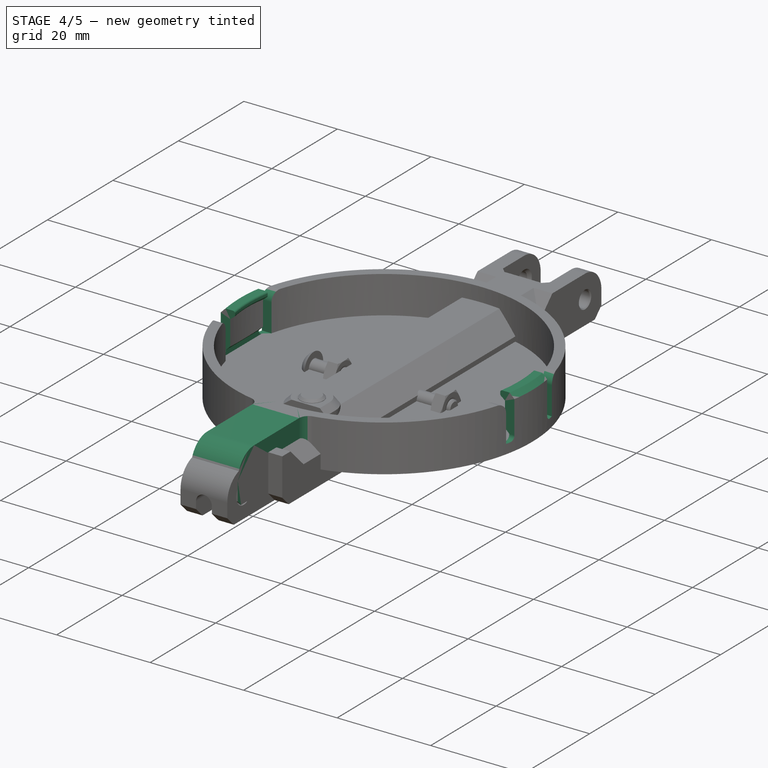
[diagram: stage 4 of 5 — iso view after this stage's code; geometry added in this stage tinted green]
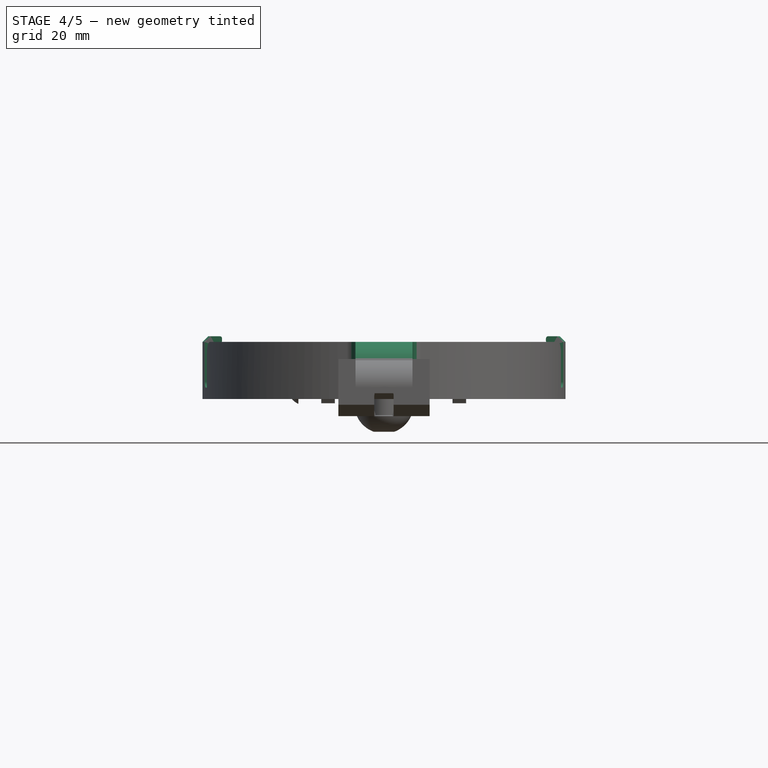
[diagram: stage 4 of 5 — front view after this stage's code; geometry added in this stage tinted green]
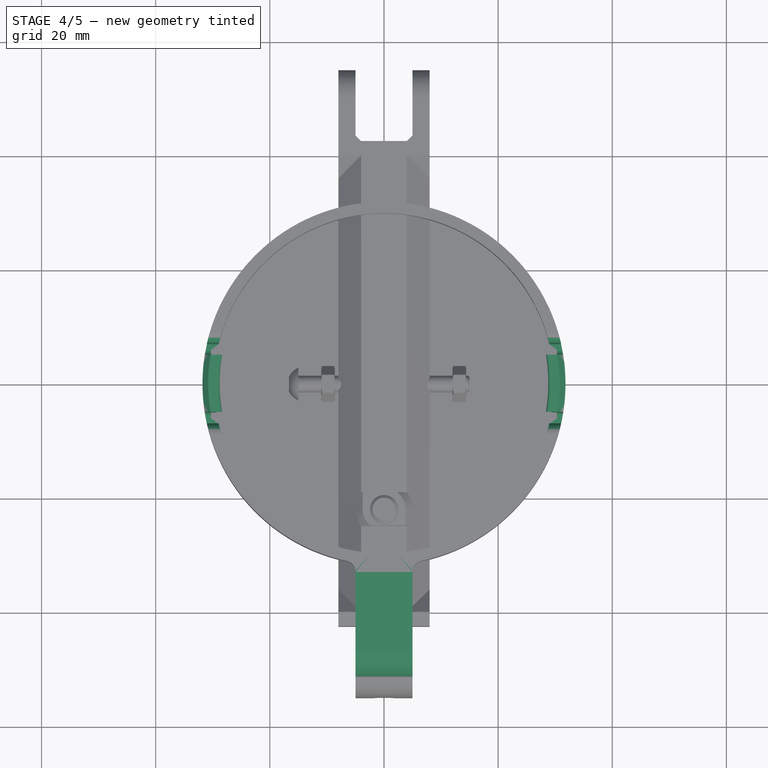
[diagram: stage 4 of 5 — top view after this stage's code; geometry added in this stage tinted green]
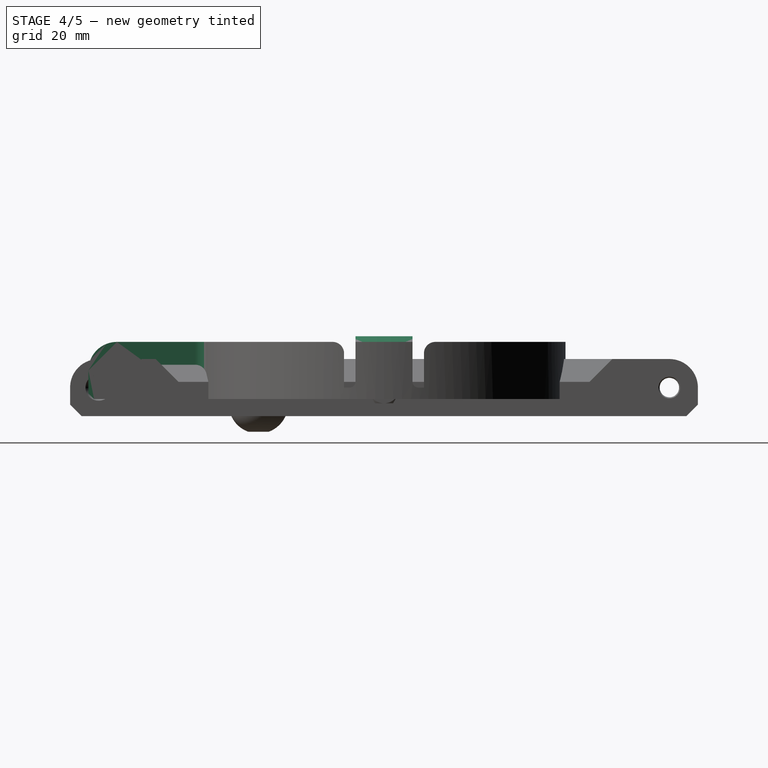
[diagram: stage 4 of 5 — right view after this stage's code; geometry added in this stage tinted green]
FEATURE [Sketcher::SketchObject] Sketch009
  ArcFitTolerance = 1e-06
  AttachmentSupport = -> [Origin008]
  ExternalTypes = [0]
  FullyConstrained = true
  MakeInternals = false
  MapMode = 5
  Placement = pos=(0,0,0) rot=(0.57735,0.57735,0.57735;2.0944rad)
  sketch-geometry (8):
    g0: LineSegment StartX=-7 StartY=0 StartZ=0 EndX=-5 EndY=0 EndZ=0
    g1: LineSegment StartX=-5 StartY=0 StartZ=0 EndX=-5 EndY=10 EndZ=0
    g2: LineSegment StartX=-5 StartY=10 StartZ=0 EndX=-7 EndY=10 EndZ=0
    g3: LineSegment StartX=-7 StartY=10 StartZ=0 EndX=-7 EndY=0 EndZ=0
    g4: LineSegment StartX=5 StartY=0 StartZ=0 EndX=7 EndY=0 EndZ=0
    g5: LineSegment StartX=7 StartY=0 StartZ=0 EndX=7 EndY=10 EndZ=0
    g6: LineSegment StartX=7 StartY=10 StartZ=0 EndX=5 EndY=10 EndZ=0
    g7: LineSegment StartX=5 StartY=10 StartZ=0 EndX=5 EndY=0 EndZ=0
  constraints (23):
    c: Coincident(g0,g1)
    c: Coincident(g1,g2)
    c: Coincident(g2,g3)
    c: Coincident(g3,g0)
    c: Horizontal(g0)
    c: Horizontal(g2)
    c: Vertical(g1)
    c: Vertical(g3)
    c: PointOnObject(g0,g-1)
    c: Coincident(g4,g5)
    c: Coincident(g5,g6)
    c: Coincident(g6,g7)
    c: Coincident(g7,g4)
    c: Horizontal(g4)
    c: Horizontal(g6)
    c: Vertical(g5)
    c: Vertical(g7)
    c: PointOnObject(g4,g-1)
    c: Equal(g6,g2)
    c: Symmetric(g1,g6,g-2)
    c: Distance(g6,g6) = 2
    c: Distance(g1,g6) = 10
    c: Distance(g5,g5) = 10
FEATURE [PartDesign::Pocket] Pocket003
  BaseFeature = -> Pad003
  Direction = (-1,0,0)
  Length = 5
  Length2 = 5
  Profile = -> Sketch009
  ReferenceAxis = -> Sketch009 [N_Axis]
  Refine = true
  SideType = 2
  Suppressed = false
  Type = 1
  Type2 = 0
FEATURE [PartDesign::Pad] Pad004
  BaseFeature = -> Pocket003
  Direction = (0,0,1)
  Length = 1
  Length2 = 10
  Profile = -> Pocket003 [Face10,Face1]
  Refine = true
  SideType = 0
  Suppressed = false
  Type = 0
  Type2 = 0
FEATURE [Sketcher::SketchObject] Sketch010
  ArcFitTolerance = 1e-06
  AttachmentSupport = -> [Pad004]
  ExternalTypes = [0,0]
  FullyConstrained = true
  MakeInternals = false
  MapMode = 5
  Placement = pos=(0,5,0) rot=(0,0.707107,0.707107;3.14159rad)
  sketch-geometry (4):
    g0: LineSegment StartX=29.3775 StartY=9 StartZ=0 EndX=28.3775 EndY=9 EndZ=0
    g1: LineSegment StartX=28.3775 StartY=9 StartZ=0 EndX=28.3775 EndY=8 EndZ=0
    g2: LineSegment StartX=28.3775 StartY=8 StartZ=0 EndX=29.3775 EndY=7.2 EndZ=0
    g3: LineSegment StartX=29.3775 StartY=7.2 StartZ=0 EndX=29.3775 EndY=9 EndZ=0
  constraints (12):
    c: Horizontal(g0)
    c: Coincident(g0,g1)
    c: Vertical(g1)
    c: Coincident(g1,g2)
    c: PointOnObject(g2,g-3)
    c: Coincident(g2,g3)
    c: Coincident(g3,g0)
    c: DistanceX(g0,g0) = 1
    c: DistanceY(g1,g1) = 1
    c: DistanceY(g3,g3) = 1.8
    c: PointOnObject(g0,g-3)
    c: Distance(g-1,g0) = 9
FEATURE [PartDesign::AdditivePipe] AdditivePipe
  AuxiliaryCurvilinear = true
  AuxiliarySpineTangent = false
  BaseFeature = -> Pad004
  Binormal = (0,0,0)
  Mode = 1
  Profile = -> Sketch010
  Refine = true
  Spine = -> Pad004 [Edge2]
  SpineTangent = false
  Suppressed = false
  Transformation = 0
  Transition = 0
FEATURE [Sketcher::SketchObject] Sketch011
  ArcFitTolerance = 1e-06
  AttachmentSupport = -> [Origin008]
  ExternalGeometry = -> [AdditivePipe]
  ExternalTypes = [0]
  FullyConstrained = true
  MakeInternals = false
  MapMode = 5
  Placement = pos=(0,0,0) rot=(1,0,0;1.5708rad)
  sketch-geometry (5):
    g0: LineSegment StartX=0 StartY=0 StartZ=0 EndX=-30.3 EndY=0 EndZ=0
    g1: LineSegment StartX=-30.3 StartY=0 StartZ=0 EndX=-30.3 EndY=1 EndZ=0
    g2: LineSegment StartX=-30.3 StartY=1 StartZ=0 EndX=-27.3 EndY=4 EndZ=0
    g3: LineSegment StartX=-27.3 StartY=4 StartZ=0 EndX=0 EndY=4 EndZ=0
    g4: LineSegment StartX=0 StartY=4 StartZ=0 EndX=0 EndY=0 EndZ=0
  constraints (14):
    c: Coincident(g-1,g0)
    c: PointOnObject(g0,g-1)
    c: Coincident(g0,g1)
    c: Vertical(g1)
    c: Coincident(g1,g2)
    c: Coincident(g2,g3)
    c: Horizontal(g3)
    c: Coincident(g3,g4)
    c: Coincident(g4,g0)
    c: Vertical(g4)
    c: Distance(g1,g1) = 1
    c: Distance(g4,g4) = 4
    c: Angle(g2,g1) = 0.785398
    c: Distance(g-3,g1) = 1.5
FEATURE [PartDesign::Pocket] Pocket004
  BaseFeature = -> AdditivePipe
  Direction = (0,1,-2e-16)
  Length = 11
  Length2 = 5
  Profile = -> Sketch011
  ReferenceAxis = -> Sketch011 [N_Axis]
  Refine = true
  SideType = 2
  Suppressed = false
  Type = 0
  Type2 = 0
FEATURE [PartDesign::Mirrored] Mirrored
  BaseFeature = -> Pocket004
  MirrorPlane = -> Sketch011 [V_Axis]
  Originals = -> [Pocket004,AdditivePipe]
  Refine = true
  Suppressed = false
  TransformMode = 0
FEATURE [PartDesign::Fillet] Fillet
  Base = -> Mirrored [Edge1,Edge3,Edge69,Edge57]
  BaseFeature = -> Mirrored
  Radius = 0.4
  Refine = true
  SupportTransform = false
  Suppressed = false
  UseAllEdges = false
FEATURE [PartDesign::Fillet] Fillet001
  Base = -> Fillet [Edge77,Edge58,Edge55,Edge80]
  BaseFeature = -> Fillet
  Radius = 2
  Refine = true
  SupportTransform = false
  Suppressed = false
  UseAllEdges = false
FEATURE [PartDesign::Chamfer] Chamfer002
  Angle = 45
  Base = -> Fillet001 [Edge21,Edge7]
  BaseFeature = -> Fillet001
  ChamferType = 0
  FlipDirection = false
  Refine = true
  Size = 1
  Size2 = 1
  SupportTransform = false
  Suppressed = false
  UseAllEdges = false
FEATURE [PartDesign::Fillet] Fillet003
  Base = -> Chamfer002 [Edge39,Edge41,Edge45,Edge28]
  BaseFeature = -> Chamfer002
  Radius = 1
  Refine = true
  SupportTransform = false
  Suppressed = false
  UseAllEdges = false
FEATURE [Sketcher::SketchObject] Sketch012
  ArcFitTolerance = 1e-06
  AttachmentSupport = -> [Origin008]
  ExternalTypes = [0]
  FullyConstrained = true
  MakeInternals = false
  MapMode = 5
  sketch-geometry (4):
    g0: LineSegment StartX=-5 StartY=-31.4045 StartZ=0 EndX=-5 EndY=-51.8 EndZ=0
    g1: LineSegment StartX=-5 StartY=-51.8 StartZ=0 EndX=5 EndY=-51.8 EndZ=0
    g2: LineSegment StartX=5 StartY=-51.8 StartZ=0 EndX=5 EndY=-31.4045 EndZ=0
    g3: LineSegment StartX=5 StartY=-31.4045 StartZ=0 EndX=-5 EndY=-31.4045 EndZ=0
  constraints (12):
    c: Coincident(g0,g1)
    c: Coincident(g1,g2)
    c: Coincident(g2,g3)
    c: Coincident(g3,g0)
    c: Vertical(g0)
    c: Vertical(g2)
    c: Horizontal(g1)
    c: Horizontal(g3)
    c: PointOnObject(g0,g-3)
    c: PointOnObject(g2,g-3)
    c: Distance(g1,g1) = 10
    c: Distance(g-3,g1) = 20
FEATURE [PartDesign::Pad] Pad005
  BaseFeature = -> Fillet003
  Direction = (0,0,1)
  Length = 8
  Length2 = 2
  Profile = -> Sketch012
  ReferenceAxis = -> Sketch012 [N_Axis]
  Refine = true
  SideType = 1
  Suppressed = false
  Type = 0
  Type2 = 0
FEATURE [PartDesign::Fillet] Fillet004
  Base = -> Pad005 [Edge115]
  BaseFeature = -> Pad005
  Radius = 5
  Refine = true
  SupportTransform = false
  Suppressed = false
  UseAllEdges = false
FEATURE [PartDesign::Chamfer] Chamfer003
  Angle = 45
  Base = -> Fillet004 [Edge51]
  BaseFeature = -> Fillet004
  ChamferType = 0
  FlipDirection = false
  Refine = true
  Size = 1
  Size2 = 1
  SupportTransform = false
  Suppressed = false
  UseAllEdges = false
FEATURE [PartDesign::Fillet] Fillet005
  Base = -> Chamfer003 [Edge47,Edge6]
  BaseFeature = -> Chamfer003
  Radius = 2
  Refine = true
  SupportTransform = false
  Suppressed = false
  UseAllEdges = false
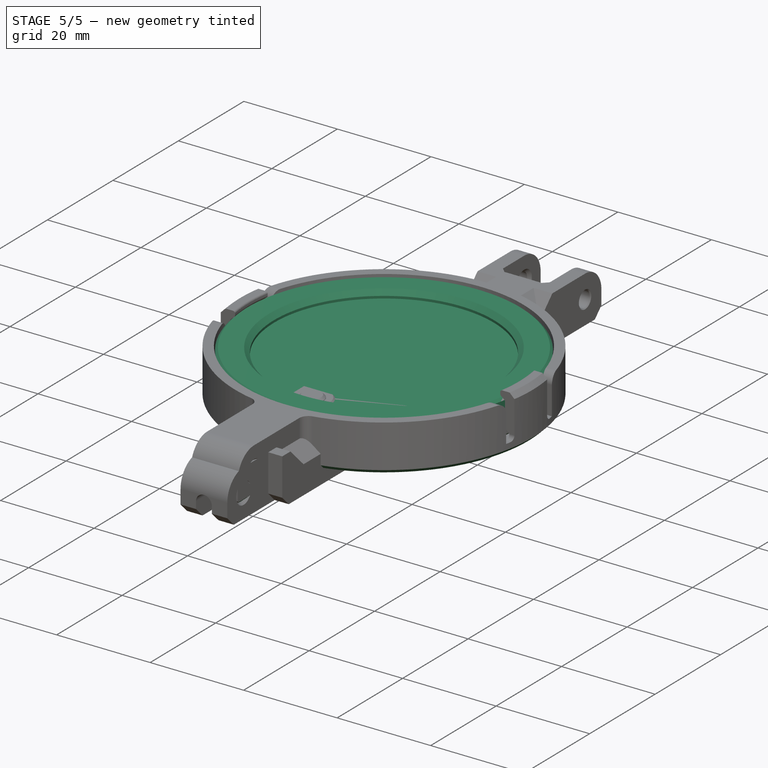
[diagram: stage 5 of 5 — iso view after this stage's code; geometry added in this stage tinted green]
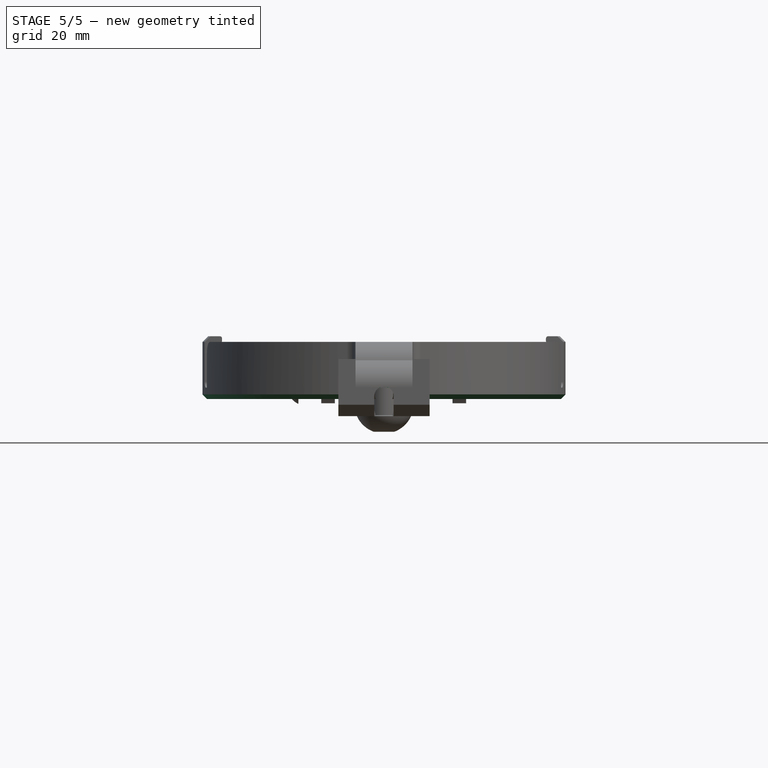
[diagram: stage 5 of 5 — front view after this stage's code; geometry added in this stage tinted green]
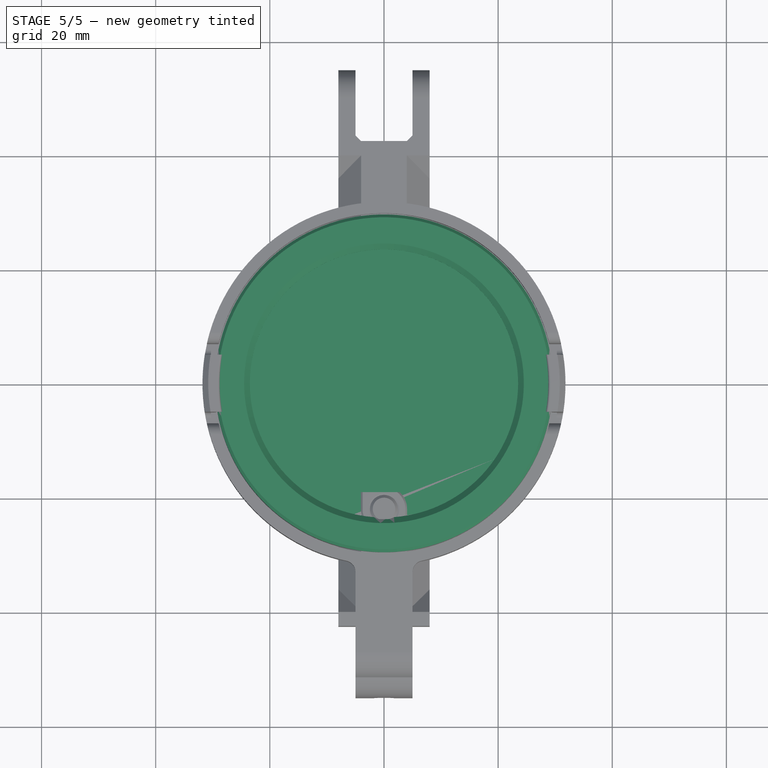
[diagram: stage 5 of 5 — top view after this stage's code; geometry added in this stage tinted green]
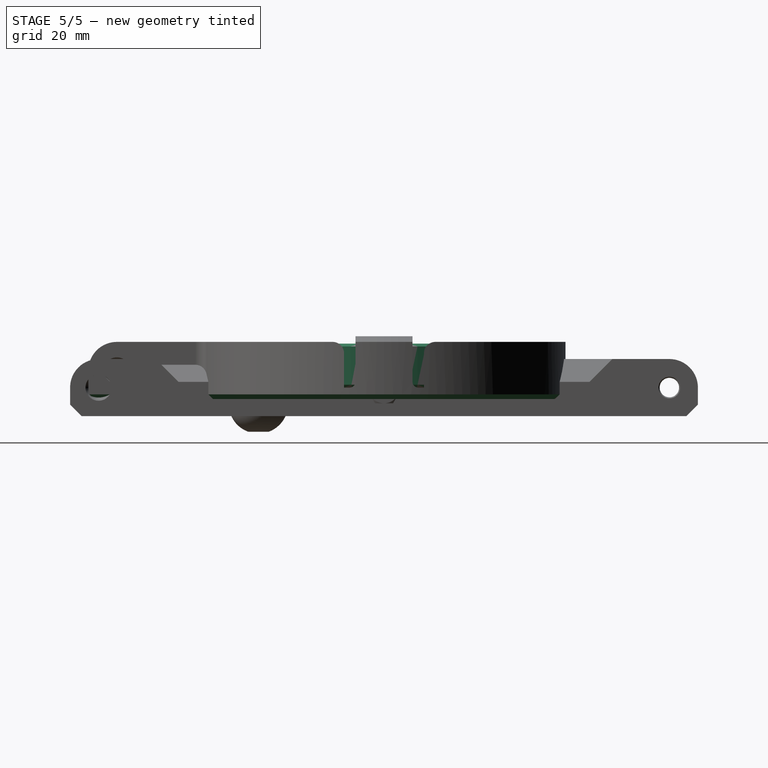
[diagram: stage 5 of 5 — right view after this stage's code; geometry added in this stage tinted green]
FEATURE [App::Point] Origin001  label="Origine"
  Role = Origin
FEATURE [Sketcher::SketchObject] Sketch
  ArcFitTolerance = 1e-06
  AttachmentSupport = -> [Origin]
  ExternalTypes = [0]
  FullyConstrained = true
  MakeInternals = false
  MapMode = 5
  Placement = pos=(0,0,0) rot=(1,0,0;1.5708rad)
  sketch-geometry (6):
    g0: LineSegment StartX=0 StartY=0 StartZ=0 EndX=29.6 EndY=0 EndZ=0
    g1: LineSegment StartX=29.6 StartY=0 StartZ=0 EndX=29.6 EndY=7.7 EndZ=0
    g2: LineSegment StartX=29.6 StartY=7.7 StartZ=0 EndX=23.5 EndY=7.7 EndZ=0
    g3: LineSegment StartX=23.5 StartY=7.7 StartZ=0 EndX=23.5 EndY=6.2 EndZ=0
    g4: LineSegment StartX=23.5 StartY=6.2 StartZ=0 EndX=0 EndY=6.2 EndZ=0
    g5: LineSegment StartX=0 StartY=6.2 StartZ=0 EndX=0 EndY=0 EndZ=0
  constraints (17):
    c: Coincident(g-1,g0)
    c: PointOnObject(g0,g-1)
    c: Coincident(g0,g1)
    c: Vertical(g1)
    c: Coincident(g1,g2)
    c: Horizontal(g2)
    c: Coincident(g2,g3)
    c: Vertical(g3)
    c: Coincident(g3,g4)
    c: Horizontal(g4)
    c: Coincident(g4,g5)
    c: Coincident(g5,g0)
    c: Vertical(g5)
    c: DistanceX(g0,g0) = 29.6
    c: Distance(g-2,g3) = 23.5
    c: DistanceY(g1,g1) = 7.7
    c: Distance(g3,g3) = 1.5
FEATURE [PartDesign::Revolution] Revolution
  Angle = 360
  Angle2 = 0
  Axis = (0,2e-16,1)
  Base = (0,0,0)
  FuseOrder = 0
  Profile = -> Sketch
  ReferenceAxis = -> Sketch [V_Axis]
  Refine = true
  Reversed = true
  Suppressed = false
  Type = 0
FEATURE [PartDesign::Chamfer] Chamfer
  Angle = 45
  Base = -> Revolution [Edge4]
  BaseFeature = -> Revolution
  ChamferType = 0
  FlipDirection = false
  Refine = true
  Size = 1
  Size2 = 1
  SupportTransform = false
  Suppressed = false
  UseAllEdges = false
FEATURE [Sketcher::SketchObject] Sketch001
  ArcFitTolerance = 1e-06
  AttachmentSupport = -> [Origin]
  ExternalTypes = [0]
  FullyConstrained = true
  MakeInternals = false
  MapMode = 5
  sketch-geometry (3):
    g0: Circle CenterX=0 CenterY=0 CenterZ=0 NormalX=0 NormalY=0 NormalZ=1 AngleXU=0 Radius=2.25
    g1: Circle CenterX=14 CenterY=0 CenterZ=0 NormalX=0 NormalY=0 NormalZ=1 AngleXU=0 Radius=1.95
    g2: Circle CenterX=-14 CenterY=0 CenterZ=0 NormalX=0 NormalY=0 NormalZ=1 AngleXU=0 Radius=1.95
  constraints (7):
    c: Coincident(g0,g-1)
    c: PointOnObject(g1,g-1)
    c: Equal(g2,g1)
    c: Symmetric(g2,g1,g-2)
    c: Diameter(g0) = 4.5
    c: Diameter(g1) = 3.9
    c: DistanceX(g2,g1) = 28
FEATURE [PartDesign::Pocket] Pocket
  BaseFeature = -> Chamfer
  Direction = (0,0,-1)
  Length = 2
  Length2 = 5
  Profile = -> Sketch001
  ReferenceAxis = -> Sketch001 [N_Axis]
  Refine = true
  Reversed = true
  SideType = 0
  Suppressed = false
  Type = 0
  Type2 = 0
FEATURE [PartDesign::Chamfer] Chamfer001
  Angle = 45
  Base = -> Pocket [Edge2,Edge5]
  BaseFeature = -> Pocket
  ChamferType = 0
  FlipDirection = false
  Refine = true
  Size = 0.5
  Size2 = 1
  SupportTransform = false
  Suppressed = false
  UseAllEdges = false
FEATURE [Sketcher::SketchObject] Sketch002
  ArcFitTolerance = 1e-06
  AttachmentSupport = -> [Origin]
  ExternalGeometry = -> [Chamfer001]
  ExternalTypes = [0]
  FullyConstrained = true
  MakeInternals = false
  MapMode = 5
  sketch-geometry (4):
    g0: ArcOfCircle CenterX=0 CenterY=-22.1 CenterZ=0 NormalX=0 NormalY=0 NormalZ=1 AngleXU=0 Radius=2 StartAngle=-9e-16 EndAngle=3.14159
    g1: ArcOfCircle CenterX=0 CenterY=-31.1 CenterZ=0 NormalX=0 NormalY=0 NormalZ=1 AngleXU=0 Radius=2 StartAngle=3.14159 EndAngle=6.28319
    g2: LineSegment StartX=2 StartY=-22.1 StartZ=0 EndX=2 EndY=-31.1 EndZ=0
    g3: LineSegment StartX=-2 StartY=-22.1 StartZ=0 EndX=-2 EndY=-31.1 EndZ=0
  constraints (10):
    c: Tangent(g0,g2) = 1.5708
    c: Tangent(g0,g3) = -1.5708
    c: Tangent(g1,g2) = 1.5708
    c: Tangent(g1,g3) = -1.5708
    c: Equal(g0,g1)
    c: PointOnObject(g0,g-2)
    c: PointOnObject(g1,g-2)
    c: Distance(g1,g1) = 4
    c: Distance(g0,g-3) = 7
    c: Tangent(g1,g-3)
FEATURE [PartDesign::Pocket] Pocket001
  BaseFeature = -> Chamfer001
  Direction = (0,0,-1)
  Length = 3
  Length2 = 5
  Profile = -> Sketch002
  ReferenceAxis = -> Sketch002 [N_Axis]
  Refine = true
  Reversed = true
  SideType = 0
  Suppressed = false
  Type = 0
  Type2 = 0
FEATURE [PartDesign::Body] Body  label="lamp-led-body"
  AllowCompound = true
  Group = -> [Sketch,Revolution,Chamfer,Sketch001,Pocket,Chamfer001,Sketch002,Pocket001]
  Origin = -> Origin
  Tip = -> Pocket001
FEATURE [App::Point] Origin003  label="Origine002"
  Role = Origin
FEATURE [Sketcher::SketchObject] Sketch003
  ArcFitTolerance = 1e-06
  AttachmentSupport = -> [Origin002]
  ExternalTypes = [0]
  FullyConstrained = true
  MakeInternals = false
  MapMode = 5
  sketch-geometry (1):
    g0: Circle CenterX=0 CenterY=0 CenterZ=0 NormalX=0 NormalY=0 NormalZ=1 AngleXU=0 Radius=25
  constraints (2):
    c: Coincident(g0,g-1)
    c: Diameter(g0) = 50
FEATURE [PartDesign::Pad] Pad
  Direction = (0,0,1)
  Length = 1
  Length2 = 10
  Profile = -> Sketch003
  ReferenceAxis = -> Sketch003 [N_Axis]
  Refine = true
  SideType = 0
  Suppressed = false
  Type = 0
  Type2 = 0
FEATURE [PartDesign::Body] Body001  label="lamp-led-diffuser"
  AllowCompound = true
  Group = -> [Sketch003,Pad]
  Origin = -> Origin002
  Placement = pos=(-9e-16,2.7e-15,5.45) rot=(0,0,1;3.14159rad)
  Tip = -> Pad
FEATURE [App::Point] Origin005  label="Origine004"
  Role = Origin
FEATURE [Sketcher::SketchObject] Sketch004
  ArcFitTolerance = 1e-06
  AttachmentSupport = -> [Origin004]
  ExternalTypes = [0]
  FullyConstrained = true
  MakeInternals = false
  MapMode = 5
  Placement = pos=(0,0,0) rot=(1,0,0;1.5708rad)
  sketch-geometry (1):
    g0: Circle CenterX=0 CenterY=0 CenterZ=0 NormalX=0 NormalY=0 NormalZ=1 AngleXU=0 Radius=1.475
  constraints (2):
    c: Coincident(g0,g-1)
    c: Diameter(g0) = 2.95
FEATURE [PartDesign::Pad] Pad001
  Direction = (0,-1,2e-16)
  Length = 15
  Length2 = 10
  Profile = -> Sketch004
  ReferenceAxis = -> Sketch004 [N_Axis]
  Refine = true
  SideType = 0
  Suppressed = false
  Type = 0
  Type2 = 0
FEATURE [Sketcher::SketchObject] Sketch013
  ArcFitTolerance = 1e-06
  AttachmentSupport = -> [Origin008]
  ExternalTypes = [0]
  FullyConstrained = true
  MakeInternals = false
  MapMode = 5
  sketch-geometry (1):
    g0: Circle CenterX=0 CenterY=0 CenterZ=0 NormalX=0 NormalY=0 NormalZ=1 AngleXU=0 Radius=25
  constraints (2):
    c: Coincident(g0,g-1)
    c: Diameter(g0) = 50
FEATURE [PartDesign::Pocket] Pocket005
  BaseFeature = -> Fillet005
  Direction = (0,0,-1)
  Length = 5
  Length2 = 5
  Profile = -> Sketch013
  ReferenceAxis = -> Sketch013 [N_Axis]
  Refine = true
  SideType = 0
  Suppressed = false
  Type = 0
  Type2 = 0
FEATURE [Sketcher::SketchObject] Sketch014
  ArcFitTolerance = 1e-06
  AttachmentSupport = -> [Origin008]
  ExternalGeometry = -> [Pocket005]
  ExternalTypes = [0]
  FullyConstrained = true
  MakeInternals = false
  MapMode = 5
  Placement = pos=(0,0,0) rot=(1,0,0;1.5708rad)
  sketch-geometry (6):
    g0: ArcOfCircle CenterX=0 CenterY=-1.32361 CenterZ=0 NormalX=0 NormalY=0 NormalZ=1 AngleXU=0 Radius=1.6 StartAngle=3.14159 EndAngle=6.28319
    g1: ArcOfCircle CenterX=0 CenterY=1.5 CenterZ=0 NormalX=0 NormalY=0 NormalZ=1 AngleXU=0 Radius=1.6 StartAngle=0 EndAngle=3.14159
    g2: LineSegment StartX=-1.6 StartY=-1.32361 StartZ=0 EndX=-1.6 EndY=1.5 EndZ=0
    g3: LineSegment StartX=1.6 StartY=-1.32361 StartZ=0 EndX=1.6 EndY=1.5 EndZ=0
    g4: GeomPoint X=1.45 Y=-2 Z=0
    g5: GeomPoint X=-1.45 Y=-2 Z=0
  constraints (15):
    c: Tangent(g0,g2) = 1.5708
    c: Tangent(g0,g3) = -1.5708
    c: Tangent(g1,g2) = 1.5708
    c: Tangent(g1,g3) = -1.5708
    c: Equal(g0,g1)
    c: PointOnObject(g0,g-2)
    c: PointOnObject(g1,g-2)
    c: Distance(g1,g-1) = 1.5
    c: Distance(g1,g1) = 3.2
    c: PointOnObject(g4,g-3)
    c: PointOnObject(g5,g-3)
    c: PointOnObject(g4,g0)
    c: PointOnObject(g5,g0)
    c: Distance(g5,g4) = 2.9
    c: Distance(g1,g-3) = 3.5
FEATURE [PartDesign::Pocket] Pocket006
  BaseFeature = -> Pocket005
  Direction = (0,1,-2e-16)
  Length = 5
  Length2 = 5
  Profile = -> Sketch014
  ReferenceAxis = -> Sketch014 [N_Axis]
  Refine = true
  Reversed = true
  SideType = 0
  Suppressed = false
  Type = 1
  Type2 = 0
FEATURE [Sketcher::SketchObject] Sketch015
  ArcFitTolerance = 1e-06
  AttachmentSupport = -> [Origin008]
  ExternalGeometry = -> [Pocket006]
  ExternalTypes = [0]
  FullyConstrained = true
  MakeInternals = false
  MapMode = 5
  Placement = pos=(0,0,0) rot=(0.57735,0.57735,0.57735;2.0944rad)
  sketch-geometry (2):
    g0: Circle CenterX=-46.8 CenterY=3 CenterZ=0 NormalX=0 NormalY=0 NormalZ=1 AngleXU=0 Radius=2.5
    g1: Circle [constr] CenterX=-46.8 CenterY=3 CenterZ=0 NormalX=0 NormalY=0 NormalZ=1 AngleXU=0 Radius=1.7
  constraints (4):
    c: Coincident(g0,g-3)
    c: Coincident(g1,g0)
    c: Diameter(g1) = 3.4
    c: Distance(g1,g0) = 0.8
FEATURE [PartDesign::Pad] Pad006
  BaseFeature = -> Pocket006
  Direction = (1,0,0)
  Length = 10
  Length2 = 10
  Profile = -> Sketch015
  ReferenceAxis = -> Sketch015 [N_Axis]
  Refine = true
  SideType = 2
  Suppressed = false
  Type = 0
  Type2 = 0
FEATURE [Sketcher::SketchObject] Sketch016
  ArcFitTolerance = 1e-06
  AttachmentSupport = -> [Origin008]
  ExternalGeometry = -> [Pad006]
  ExternalTypes = [0]
  FullyConstrained = true
  MakeInternals = false
  MapMode = 5
  Placement = pos=(0,0,0) rot=(0.57735,0.57735,0.57735;2.0944rad)
  sketch-geometry (1):
    g0: Circle CenterX=-46.8 CenterY=3 CenterZ=0 NormalX=0 NormalY=0 NormalZ=1 AngleXU=0 Radius=1.7
  constraints (2):
    c: Coincident(g0,g-3)
    c: Diameter(g0) = 3.4
FEATURE [PartDesign::Pocket] Pocket007
  BaseFeature = -> Pad006
  Direction = (-1,0,0)
  Length = 5
  Length2 = 5
  Profile = -> Sketch016
  ReferenceAxis = -> Sketch016 [N_Axis]
  Refine = true
  SideType = 2
  Suppressed = false
  Type = 1
  Type2 = 0
FEATURE [PartDesign::Chamfer] Chamfer004
  Angle = 45
  Base = -> Pocket007 [Edge68,Edge49]
  BaseFeature = -> Pocket007
  ChamferType = 0
  FlipDirection = false
  Refine = true
  Size = 0.6
  Size2 = 1
  SupportTransform = false
  Suppressed = false
  UseAllEdges = false
FEATURE [PartDesign::Fillet] Fillet006
  Base = -> Chamfer004 [Edge70,Edge72]
  BaseFeature = -> Chamfer004
  Radius = 3
  Refine = true
  SupportTransform = false
  Suppressed = false
  UseAllEdges = false
FEATURE [PartDesign::Chamfer] Chamfer005
  Angle = 45
  Base = -> Fillet006 [Edge14]
  BaseFeature = -> Fillet006
  ChamferType = 0
  FlipDirection = false
  Refine = true
  Size = 0.8
  Size2 = 1
  SupportTransform = false
  Suppressed = false
  UseAllEdges = false
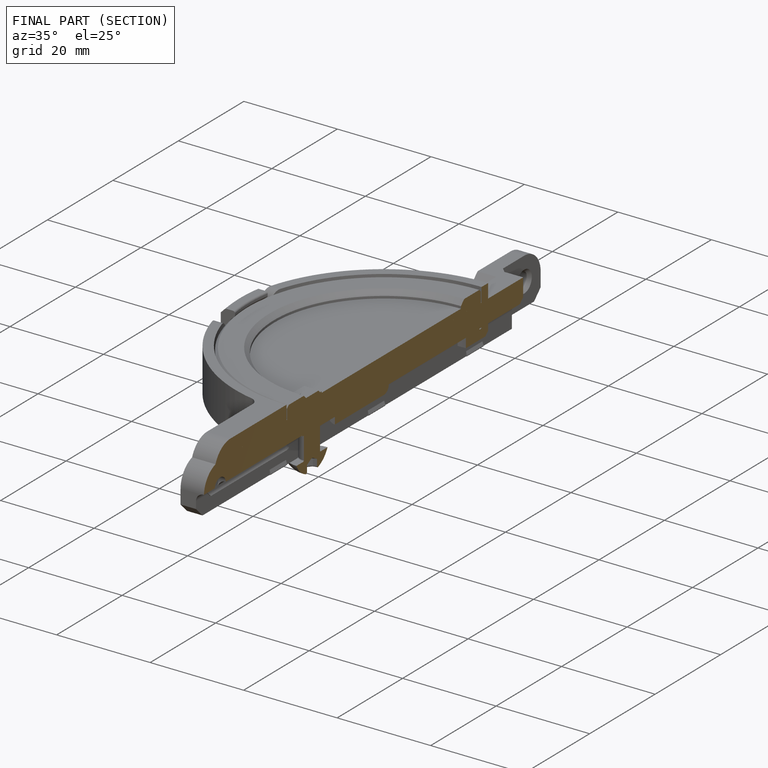
[diagram: finished part — half-section view (interior)]
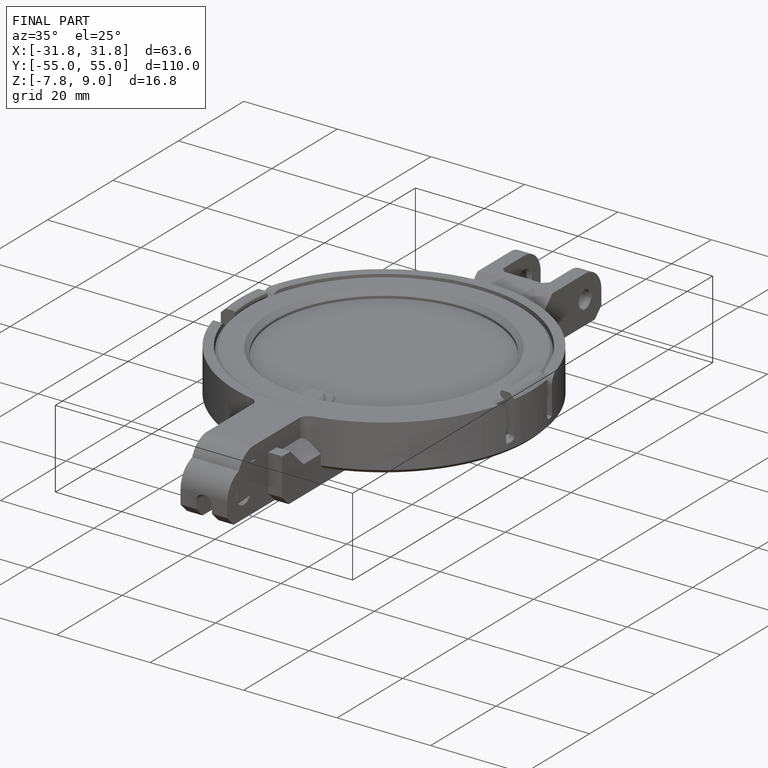
[diagram: finished part — iso view with bounding-box wireframe]
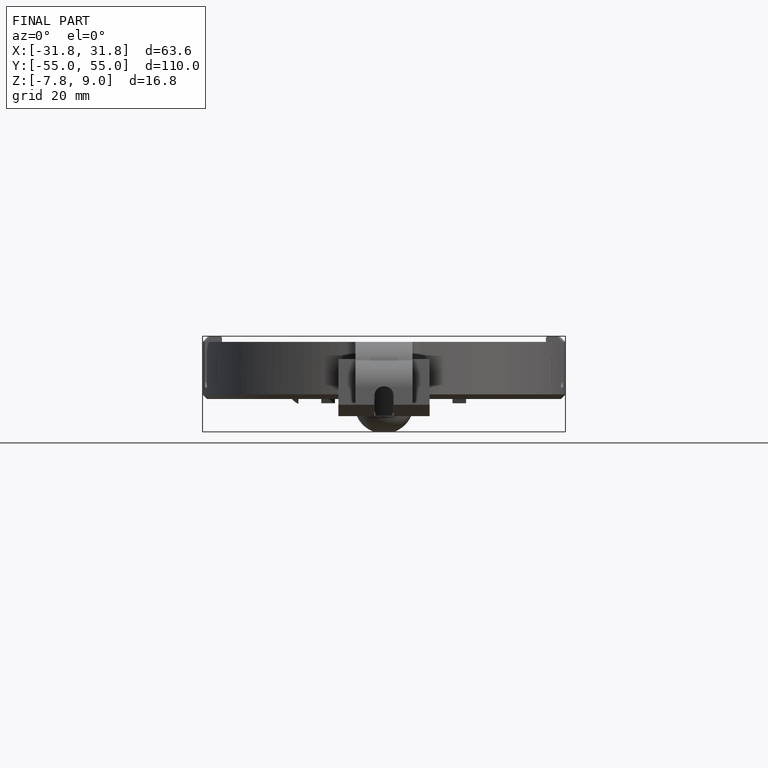
[diagram: finished part — front view with bounding-box wireframe]
